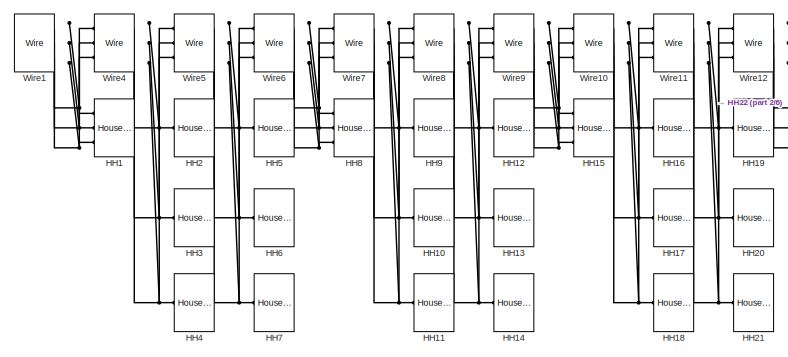
[diagram: root canvas - part 1/6, top left region]
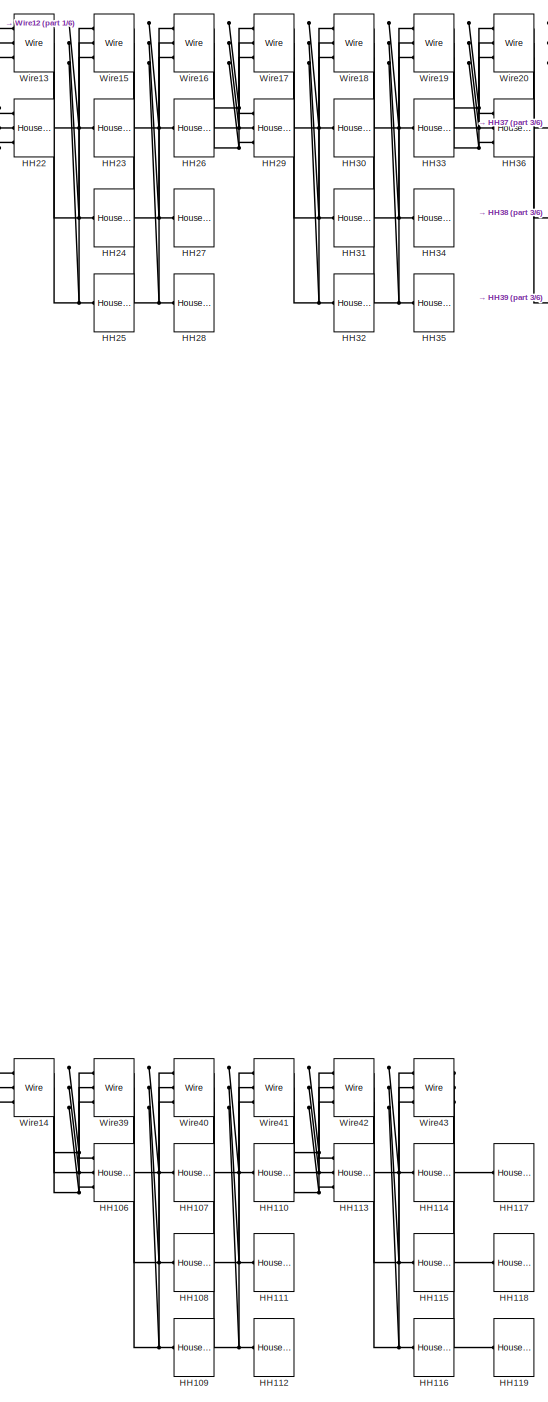
[diagram: root canvas - part 2/6, top center region]
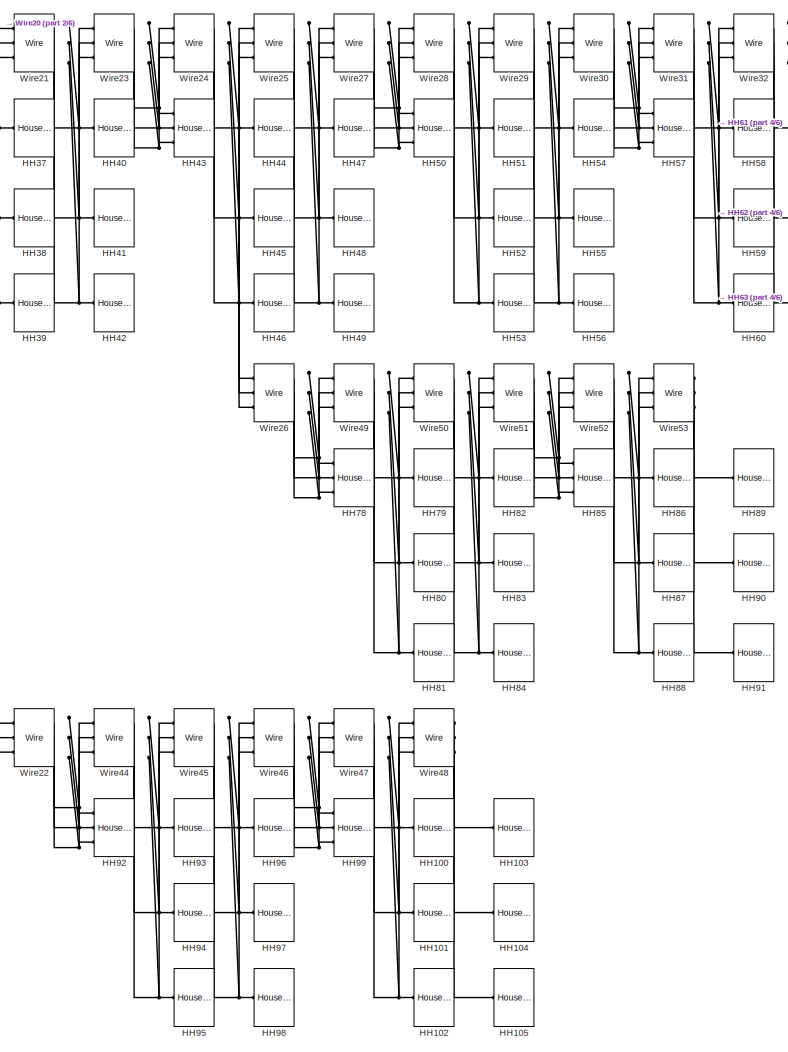
[diagram: root canvas - part 3/6, top center region]
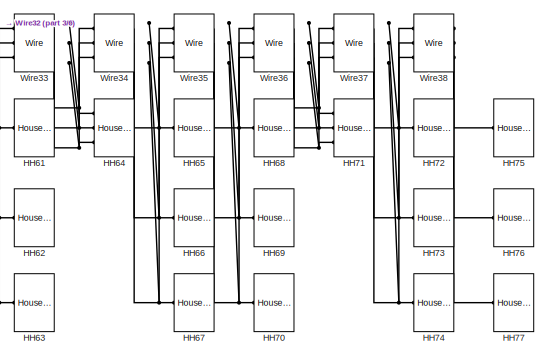
[diagram: root canvas - part 4/6, top right region]
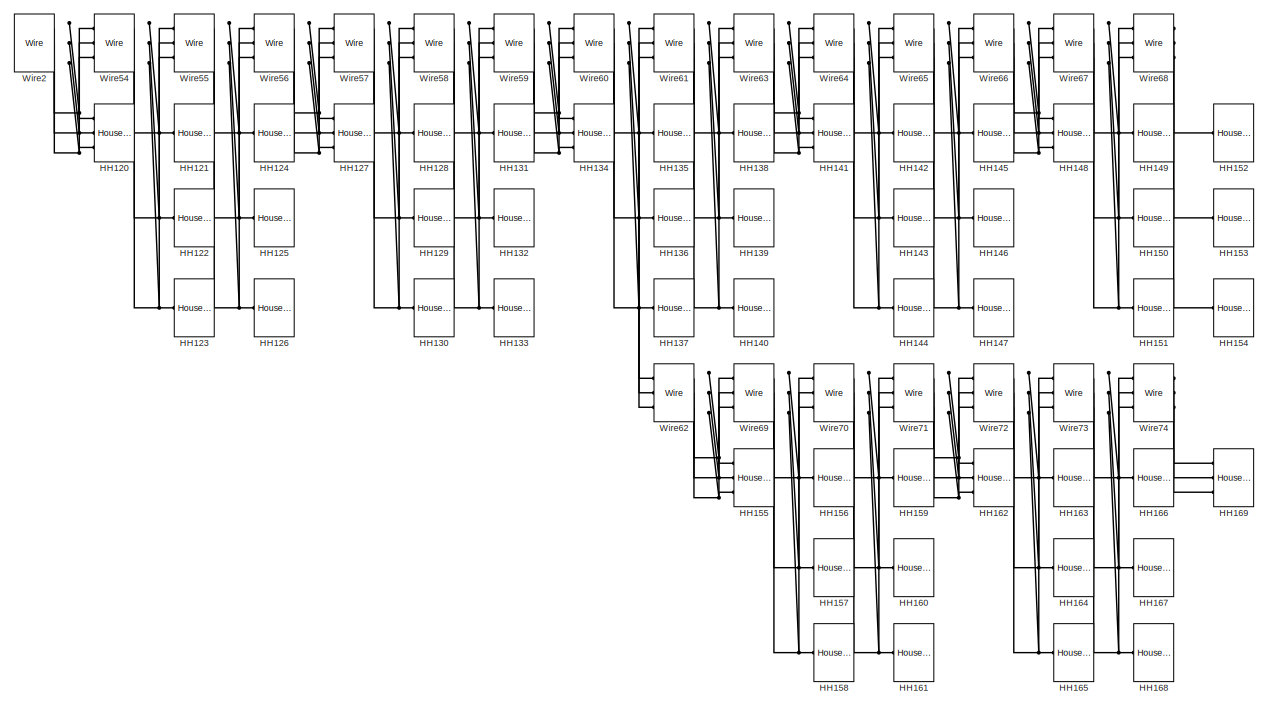
[diagram: root canvas - part 5/6, bottom left region]
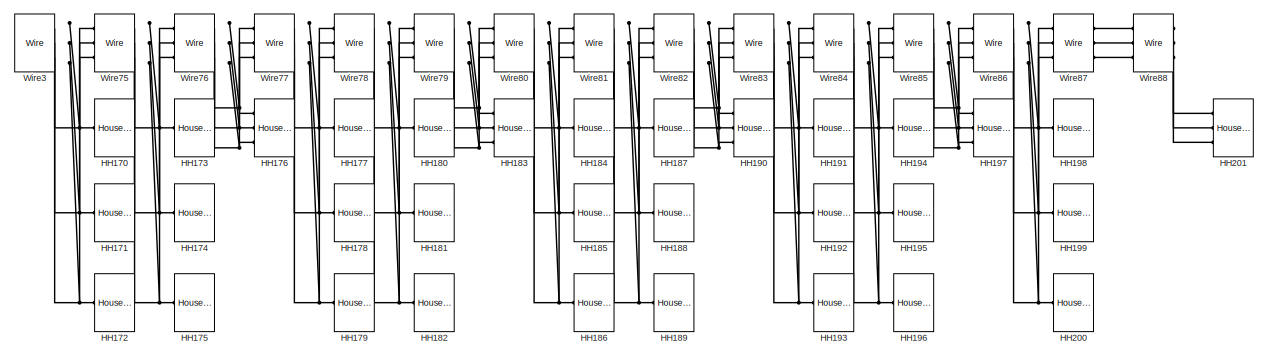
[diagram: root canvas - part 6/6, bottom left region]
MODEL slx_bb78c5064964
KIND model
CONFIG AbsTol = auto
CONFIG EnableMultiTasking = off
CONFIG FixedStep = auto
CONFIG MaxStep = auto
CONFIG MinStep = auto
CONFIG RelTol = 1e-3
CONFIG SampleTimeConstraint = Unconstrained
CONFIG SolverName = VariableStepAuto
CONFIG StartTime = 0.0
CONFIG StopTime = 10.0
BLOCK [Reference] HH1  REF=kif2/Household  (lib defined in slx_8baa95f9d146)
  Ports = [0, 0, 0, 0, 0, 3]
  SourceBlock = kif2/Household
  SourceProductName = KIF2 Library
  SourceType = Household (Three Phase)
BLOCK [Reference] HH10  REF=kif2/Household  (lib defined in slx_8baa95f9d146)
(Single Phase)
  Ports = [0, 0, 0, 0, 0, 1]
  SourceBlock = kif2/Household\n(Single Phase)
  SourceProductName = KIF2 Library
  SourceType = Household (Single Phase)
BLOCK [Reference] HH100  REF=kif2/Household  (lib defined in slx_8baa95f9d146)
(Single Phase)
  Ports = [0, 0, 0, 0, 0, 1]
  SourceBlock = kif2/Household\n(Single Phase)
  SourceProductName = KIF2 Library
  SourceType = Household (Single Phase)
BLOCK [Reference] HH101  REF=kif2/Household  (lib defined in slx_8baa95f9d146)
(Single Phase)
  Ports = [0, 0, 0, 0, 0, 1]
  SourceBlock = kif2/Household\n(Single Phase)
  SourceProductName = KIF2 Library
  SourceType = Household (Single Phase)
BLOCK [Reference] HH102  REF=kif2/Household  (lib defined in slx_8baa95f9d146)
(Single Phase)
  Ports = [0, 0, 0, 0, 0, 1]
  SourceBlock = kif2/Household\n(Single Phase)
  SourceProductName = KIF2 Library
  SourceType = Household (Single Phase)
BLOCK [Reference] HH103  REF=kif2/Household  (lib defined in slx_8baa95f9d146)
(Single Phase)
  Ports = [0, 0, 0, 0, 0, 1]
  SourceBlock = kif2/Household\n(Single Phase)
  SourceProductName = KIF2 Library
  SourceType = Household (Single Phase)
BLOCK [Reference] HH104  REF=kif2/Household  (lib defined in slx_8baa95f9d146)
(Single Phase)
  Ports = [0, 0, 0, 0, 0, 1]
  SourceBlock = kif2/Household\n(Single Phase)
  SourceProductName = KIF2 Library
  SourceType = Household (Single Phase)
BLOCK [Reference] HH105  REF=kif2/Household  (lib defined in slx_8baa95f9d146)
(Single Phase)
  Ports = [0, 0, 0, 0, 0, 1]
  SourceBlock = kif2/Household\n(Single Phase)
  SourceProductName = KIF2 Library
  SourceType = Household (Single Phase)
BLOCK [Reference] HH106  REF=kif2/Household  (lib defined in slx_8baa95f9d146)
  Ports = [0, 0, 0, 0, 0, 3]
  SourceBlock = kif2/Household
  SourceProductName = KIF2 Library
  SourceType = Household (Three Phase)
BLOCK [Reference] HH107  REF=kif2/Household  (lib defined in slx_8baa95f9d146)
(Single Phase)
  Ports = [0, 0, 0, 0, 0, 1]
  SourceBlock = kif2/Household\n(Single Phase)
  SourceProductName = KIF2 Library
  SourceType = Household (Single Phase)
BLOCK [Reference] HH108  REF=kif2/Household  (lib defined in slx_8baa95f9d146)
(Single Phase)
  Ports = [0, 0, 0, 0, 0, 1]
  SourceBlock = kif2/Household\n(Single Phase)
  SourceProductName = KIF2 Library
  SourceType = Household (Single Phase)
BLOCK [Reference] HH109  REF=kif2/Household  (lib defined in slx_8baa95f9d146)
(Single Phase)
  Ports = [0, 0, 0, 0, 0, 1]
  SourceBlock = kif2/Household\n(Single Phase)
  SourceProductName = KIF2 Library
  SourceType = Household (Single Phase)
BLOCK [Reference] HH11  REF=kif2/Household  (lib defined in slx_8baa95f9d146)
(Single Phase)
  Ports = [0, 0, 0, 0, 0, 1]
  SourceBlock = kif2/Household\n(Single Phase)
  SourceProductName = KIF2 Library
  SourceType = Household (Single Phase)
BLOCK [Reference] HH110  REF=kif2/Household  (lib defined in slx_8baa95f9d146)
(Single Phase)
  Ports = [0, 0, 0, 0, 0, 1]
  SourceBlock = kif2/Household\n(Single Phase)
  SourceProductName = KIF2 Library
  SourceType = Household (Single Phase)
BLOCK [Reference] HH111  REF=kif2/Household  (lib defined in slx_8baa95f9d146)
(Single Phase)
  Ports = [0, 0, 0, 0, 0, 1]
  SourceBlock = kif2/Household\n(Single Phase)
  SourceProductName = KIF2 Library
  SourceType = Household (Single Phase)
BLOCK [Reference] HH112  REF=kif2/Household  (lib defined in slx_8baa95f9d146)
(Single Phase)
  Ports = [0, 0, 0, 0, 0, 1]
  SourceBlock = kif2/Household\n(Single Phase)
  SourceProductName = KIF2 Library
  SourceType = Household (Single Phase)
BLOCK [Reference] HH113  REF=kif2/Household  (lib defined in slx_8baa95f9d146)
  Ports = [0, 0, 0, 0, 0, 3]
  SourceBlock = kif2/Household
  SourceProductName = KIF2 Library
  SourceType = Household (Three Phase)
BLOCK [Reference] HH114  REF=kif2/Household  (lib defined in slx_8baa95f9d146)
(Single Phase)
  Ports = [0, 0, 0, 0, 0, 1]
  SourceBlock = kif2/Household\n(Single Phase)
  SourceProductName = KIF2 Library
  SourceType = Household (Single Phase)
BLOCK [Reference] HH115  REF=kif2/Household  (lib defined in slx_8baa95f9d146)
(Single Phase)
  Ports = [0, 0, 0, 0, 0, 1]
  SourceBlock = kif2/Household\n(Single Phase)
  SourceProductName = KIF2 Library
  SourceType = Household (Single Phase)
BLOCK [Reference] HH116  REF=kif2/Household  (lib defined in slx_8baa95f9d146)
(Single Phase)
  Ports = [0, 0, 0, 0, 0, 1]
  SourceBlock = kif2/Household\n(Single Phase)
  SourceProductName = KIF2 Library
  SourceType = Household (Single Phase)
BLOCK [Reference] HH117  REF=kif2/Household  (lib defined in slx_8baa95f9d146)
(Single Phase)
  Ports = [0, 0, 0, 0, 0, 1]
  SourceBlock = kif2/Household\n(Single Phase)
  SourceProductName = KIF2 Library
  SourceType = Household (Single Phase)
BLOCK [Reference] HH118  REF=kif2/Household  (lib defined in slx_8baa95f9d146)
(Single Phase)
  Ports = [0, 0, 0, 0, 0, 1]
  SourceBlock = kif2/Household\n(Single Phase)
  SourceProductName = KIF2 Library
  SourceType = Household (Single Phase)
BLOCK [Reference] HH119  REF=kif2/Household  (lib defined in slx_8baa95f9d146)
(Single Phase)
  Ports = [0, 0, 0, 0, 0, 1]
  SourceBlock = kif2/Household\n(Single Phase)
  SourceProductName = KIF2 Library
  SourceType = Household (Single Phase)
BLOCK [Reference] HH12  REF=kif2/Household  (lib defined in slx_8baa95f9d146)
(Single Phase)
  Ports = [0, 0, 0, 0, 0, 1]
  SourceBlock = kif2/Household\n(Single Phase)
  SourceProductName = KIF2 Library
  SourceType = Household (Single Phase)
BLOCK [Reference] HH120  REF=kif2/Household  (lib defined in slx_8baa95f9d146)
  Ports = [0, 0, 0, 0, 0, 3]
  SourceBlock = kif2/Household
  SourceProductName = KIF2 Library
  SourceType = Household (Three Phase)
BLOCK [Reference] HH121  REF=kif2/Household  (lib defined in slx_8baa95f9d146)
(Single Phase)
  Ports = [0, 0, 0, 0, 0, 1]
  SourceBlock = kif2/Household\n(Single Phase)
  SourceProductName = KIF2 Library
  SourceType = Household (Single Phase)
BLOCK [Reference] HH122  REF=kif2/Household  (lib defined in slx_8baa95f9d146)
(Single Phase)
  Ports = [0, 0, 0, 0, 0, 1]
  SourceBlock = kif2/Household\n(Single Phase)
  SourceProductName = KIF2 Library
  SourceType = Household (Single Phase)
BLOCK [Reference] HH123  REF=kif2/Household  (lib defined in slx_8baa95f9d146)
(Single Phase)
  Ports = [0, 0, 0, 0, 0, 1]
  SourceBlock = kif2/Household\n(Single Phase)
  SourceProductName = KIF2 Library
  SourceType = Household (Single Phase)
BLOCK [Reference] HH124  REF=kif2/Household  (lib defined in slx_8baa95f9d146)
(Single Phase)
  Ports = [0, 0, 0, 0, 0, 1]
  SourceBlock = kif2/Household\n(Single Phase)
  SourceProductName = KIF2 Library
  SourceType = Household (Single Phase)
BLOCK [Reference] HH125  REF=kif2/Household  (lib defined in slx_8baa95f9d146)
(Single Phase)
  Ports = [0, 0, 0, 0, 0, 1]
  SourceBlock = kif2/Household\n(Single Phase)
  SourceProductName = KIF2 Library
  SourceType = Household (Single Phase)
BLOCK [Reference] HH126  REF=kif2/Household  (lib defined in slx_8baa95f9d146)
(Single Phase)
  Ports = [0, 0, 0, 0, 0, 1]
  SourceBlock = kif2/Household\n(Single Phase)
  SourceProductName = KIF2 Library
  SourceType = Household (Single Phase)
BLOCK [Reference] HH127  REF=kif2/Household  (lib defined in slx_8baa95f9d146)
  Ports = [0, 0, 0, 0, 0, 3]
  SourceBlock = kif2/Household
  SourceProductName = KIF2 Library
  SourceType = Household (Three Phase)
BLOCK [Reference] HH128  REF=kif2/Household  (lib defined in slx_8baa95f9d146)
(Single Phase)
  Ports = [0, 0, 0, 0, 0, 1]
  SourceBlock = kif2/Household\n(Single Phase)
  SourceProductName = KIF2 Library
  SourceType = Household (Single Phase)
BLOCK [Reference] HH129  REF=kif2/Household  (lib defined in slx_8baa95f9d146)
(Single Phase)
  Ports = [0, 0, 0, 0, 0, 1]
  SourceBlock = kif2/Household\n(Single Phase)
  SourceProductName = KIF2 Library
  SourceType = Household (Single Phase)
BLOCK [Reference] HH13  REF=kif2/Household  (lib defined in slx_8baa95f9d146)
(Single Phase)
  Ports = [0, 0, 0, 0, 0, 1]
  SourceBlock = kif2/Household\n(Single Phase)
  SourceProductName = KIF2 Library
  SourceType = Household (Single Phase)
BLOCK [Reference] HH130  REF=kif2/Household  (lib defined in slx_8baa95f9d146)
(Single Phase)
  Ports = [0, 0, 0, 0, 0, 1]
  SourceBlock = kif2/Household\n(Single Phase)
  SourceProductName = KIF2 Library
  SourceType = Household (Single Phase)
BLOCK [Reference] HH131  REF=kif2/Household  (lib defined in slx_8baa95f9d146)
(Single Phase)
  Ports = [0, 0, 0, 0, 0, 1]
  SourceBlock = kif2/Household\n(Single Phase)
  SourceProductName = KIF2 Library
  SourceType = Household (Single Phase)
BLOCK [Reference] HH132  REF=kif2/Household  (lib defined in slx_8baa95f9d146)
(Single Phase)
  Ports = [0, 0, 0, 0, 0, 1]
  SourceBlock = kif2/Household\n(Single Phase)
  SourceProductName = KIF2 Library
  SourceType = Household (Single Phase)
BLOCK [Reference] HH133  REF=kif2/Household  (lib defined in slx_8baa95f9d146)
(Single Phase)
  Ports = [0, 0, 0, 0, 0, 1]
  SourceBlock = kif2/Household\n(Single Phase)
  SourceProductName = KIF2 Library
  SourceType = Household (Single Phase)
BLOCK [Reference] HH134  REF=kif2/Household  (lib defined in slx_8baa95f9d146)
  Ports = [0, 0, 0, 0, 0, 3]
  SourceBlock = kif2/Household
  SourceProductName = KIF2 Library
  SourceType = Household (Three Phase)
BLOCK [Reference] HH135  REF=kif2/Household  (lib defined in slx_8baa95f9d146)
(Single Phase)
  Ports = [0, 0, 0, 0, 0, 1]
  SourceBlock = kif2/Household\n(Single Phase)
  SourceProductName = KIF2 Library
  SourceType = Household (Single Phase)
BLOCK [Reference] HH136  REF=kif2/Household  (lib defined in slx_8baa95f9d146)
(Single Phase)
  Ports = [0, 0, 0, 0, 0, 1]
  SourceBlock = kif2/Household\n(Single Phase)
  SourceProductName = KIF2 Library
  SourceType = Household (Single Phase)
BLOCK [Reference] HH137  REF=kif2/Household  (lib defined in slx_8baa95f9d146)
(Single Phase)
  Ports = [0, 0, 0, 0, 0, 1]
  SourceBlock = kif2/Household\n(Single Phase)
  SourceProductName = KIF2 Library
  SourceType = Household (Single Phase)
BLOCK [Reference] HH138  REF=kif2/Household  (lib defined in slx_8baa95f9d146)
(Single Phase)
  Ports = [0, 0, 0, 0, 0, 1]
  SourceBlock = kif2/Household\n(Single Phase)
  SourceProductName = KIF2 Library
  SourceType = Household (Single Phase)
BLOCK [Reference] HH139  REF=kif2/Household  (lib defined in slx_8baa95f9d146)
(Single Phase)
  Ports = [0, 0, 0, 0, 0, 1]
  SourceBlock = kif2/Household\n(Single Phase)
  SourceProductName = KIF2 Library
  SourceType = Household (Single Phase)
BLOCK [Reference] HH14  REF=kif2/Household  (lib defined in slx_8baa95f9d146)
(Single Phase)
  Ports = [0, 0, 0, 0, 0, 1]
  SourceBlock = kif2/Household\n(Single Phase)
  SourceProductName = KIF2 Library
  SourceType = Household (Single Phase)
BLOCK [Reference] HH140  REF=kif2/Household  (lib defined in slx_8baa95f9d146)
(Single Phase)
  Ports = [0, 0, 0, 0, 0, 1]
  SourceBlock = kif2/Household\n(Single Phase)
  SourceProductName = KIF2 Library
  SourceType = Household (Single Phase)
BLOCK [Reference] HH141  REF=kif2/Household  (lib defined in slx_8baa95f9d146)
  Ports = [0, 0, 0, 0, 0, 3]
  SourceBlock = kif2/Household
  SourceProductName = KIF2 Library
  SourceType = Household (Three Phase)
BLOCK [Reference] HH142  REF=kif2/Household  (lib defined in slx_8baa95f9d146)
(Single Phase)
  Ports = [0, 0, 0, 0, 0, 1]
  SourceBlock = kif2/Household\n(Single Phase)
  SourceProductName = KIF2 Library
  SourceType = Household (Single Phase)
BLOCK [Reference] HH143  REF=kif2/Household  (lib defined in slx_8baa95f9d146)
(Single Phase)
  Ports = [0, 0, 0, 0, 0, 1]
  SourceBlock = kif2/Household\n(Single Phase)
  SourceProductName = KIF2 Library
  SourceType = Household (Single Phase)
BLOCK [Reference] HH144  REF=kif2/Household  (lib defined in slx_8baa95f9d146)
(Single Phase)
  Ports = [0, 0, 0, 0, 0, 1]
  SourceBlock = kif2/Household\n(Single Phase)
  SourceProductName = KIF2 Library
  SourceType = Household (Single Phase)
BLOCK [Reference] HH145  REF=kif2/Household  (lib defined in slx_8baa95f9d146)
(Single Phase)
  Ports = [0, 0, 0, 0, 0, 1]
  SourceBlock = kif2/Household\n(Single Phase)
  SourceProductName = KIF2 Library
  SourceType = Household (Single Phase)
BLOCK [Reference] HH146  REF=kif2/Household  (lib defined in slx_8baa95f9d146)
(Single Phase)
  Ports = [0, 0, 0, 0, 0, 1]
  SourceBlock = kif2/Household\n(Single Phase)
  SourceProductName = KIF2 Library
  SourceType = Household (Single Phase)
BLOCK [Reference] HH147  REF=kif2/Household  (lib defined in slx_8baa95f9d146)
(Single Phase)
  Ports = [0, 0, 0, 0, 0, 1]
  SourceBlock = kif2/Household\n(Single Phase)
  SourceProductName = KIF2 Library
  SourceType = Household (Single Phase)
BLOCK [Reference] HH148  REF=kif2/Household  (lib defined in slx_8baa95f9d146)
  Ports = [0, 0, 0, 0, 0, 3]
  SourceBlock = kif2/Household
  SourceProductName = KIF2 Library
  SourceType = Household (Three Phase)
BLOCK [Reference] HH149  REF=kif2/Household  (lib defined in slx_8baa95f9d146)
(Single Phase)
  Ports = [0, 0, 0, 0, 0, 1]
  SourceBlock = kif2/Household\n(Single Phase)
  SourceProductName = KIF2 Library
  SourceType = Household (Single Phase)
BLOCK [Reference] HH15  REF=kif2/Household  (lib defined in slx_8baa95f9d146)
  Ports = [0, 0, 0, 0, 0, 3]
  SourceBlock = kif2/Household
  SourceProductName = KIF2 Library
  SourceType = Household (Three Phase)
BLOCK [Reference] HH150  REF=kif2/Household  (lib defined in slx_8baa95f9d146)
(Single Phase)
  Ports = [0, 0, 0, 0, 0, 1]
  SourceBlock = kif2/Household\n(Single Phase)
  SourceProductName = KIF2 Library
  SourceType = Household (Single Phase)
BLOCK [Reference] HH151  REF=kif2/Household  (lib defined in slx_8baa95f9d146)
(Single Phase)
  Ports = [0, 0, 0, 0, 0, 1]
  SourceBlock = kif2/Household\n(Single Phase)
  SourceProductName = KIF2 Library
  SourceType = Household (Single Phase)
BLOCK [Reference] HH152  REF=kif2/Household  (lib defined in slx_8baa95f9d146)
(Single Phase)
  Ports = [0, 0, 0, 0, 0, 1]
  SourceBlock = kif2/Household\n(Single Phase)
  SourceProductName = KIF2 Library
  SourceType = Household (Single Phase)
BLOCK [Reference] HH153  REF=kif2/Household  (lib defined in slx_8baa95f9d146)
(Single Phase)
  Ports = [0, 0, 0, 0, 0, 1]
  SourceBlock = kif2/Household\n(Single Phase)
  SourceProductName = KIF2 Library
  SourceType = Household (Single Phase)
BLOCK [Reference] HH154  REF=kif2/Household  (lib defined in slx_8baa95f9d146)
(Single Phase)
  Ports = [0, 0, 0, 0, 0, 1]
  SourceBlock = kif2/Household\n(Single Phase)
  SourceProductName = KIF2 Library
  SourceType = Household (Single Phase)
BLOCK [Reference] HH155  REF=kif2/Household  (lib defined in slx_8baa95f9d146)
  Ports = [0, 0, 0, 0, 0, 3]
  SourceBlock = kif2/Household
  SourceProductName = KIF2 Library
  SourceType = Household (Three Phase)
BLOCK [Reference] HH156  REF=kif2/Household  (lib defined in slx_8baa95f9d146)
(Single Phase)
  Ports = [0, 0, 0, 0, 0, 1]
  SourceBlock = kif2/Household\n(Single Phase)
  SourceProductName = KIF2 Library
  SourceType = Household (Single Phase)
BLOCK [Reference] HH157  REF=kif2/Household  (lib defined in slx_8baa95f9d146)
(Single Phase)
  Ports = [0, 0, 0, 0, 0, 1]
  SourceBlock = kif2/Household\n(Single Phase)
  SourceProductName = KIF2 Library
  SourceType = Household (Single Phase)
BLOCK [Reference] HH158  REF=kif2/Household  (lib defined in slx_8baa95f9d146)
(Single Phase)
  Ports = [0, 0, 0, 0, 0, 1]
  SourceBlock = kif2/Household\n(Single Phase)
  SourceProductName = KIF2 Library
  SourceType = Household (Single Phase)
BLOCK [Reference] HH159  REF=kif2/Household  (lib defined in slx_8baa95f9d146)
(Single Phase)
  Ports = [0, 0, 0, 0, 0, 1]
  SourceBlock = kif2/Household\n(Single Phase)
  SourceProductName = KIF2 Library
  SourceType = Household (Single Phase)
BLOCK [Reference] HH16  REF=kif2/Household  (lib defined in slx_8baa95f9d146)
(Single Phase)
  Ports = [0, 0, 0, 0, 0, 1]
  SourceBlock = kif2/Household\n(Single Phase)
  SourceProductName = KIF2 Library
  SourceType = Household (Single Phase)
BLOCK [Reference] HH160  REF=kif2/Household  (lib defined in slx_8baa95f9d146)
(Single Phase)
  Ports = [0, 0, 0, 0, 0, 1]
  SourceBlock = kif2/Household\n(Single Phase)
  SourceProductName = KIF2 Library
  SourceType = Household (Single Phase)
BLOCK [Reference] HH161  REF=kif2/Household  (lib defined in slx_8baa95f9d146)
(Single Phase)
  Ports = [0, 0, 0, 0, 0, 1]
  SourceBlock = kif2/Household\n(Single Phase)
  SourceProductName = KIF2 Library
  SourceType = Household (Single Phase)
BLOCK [Reference] HH162  REF=kif2/Household  (lib defined in slx_8baa95f9d146)
  Ports = [0, 0, 0, 0, 0, 3]
  SourceBlock = kif2/Household
  SourceProductName = KIF2 Library
  SourceType = Household (Three Phase)
BLOCK [Reference] HH163  REF=kif2/Household  (lib defined in slx_8baa95f9d146)
(Single Phase)
  Ports = [0, 0, 0, 0, 0, 1]
  SourceBlock = kif2/Household\n(Single Phase)
  SourceProductName = KIF2 Library
  SourceType = Household (Single Phase)
BLOCK [Reference] HH164  REF=kif2/Household  (lib defined in slx_8baa95f9d146)
(Single Phase)
  Ports = [0, 0, 0, 0, 0, 1]
  SourceBlock = kif2/Household\n(Single Phase)
  SourceProductName = KIF2 Library
  SourceType = Household (Single Phase)
BLOCK [Reference] HH165  REF=kif2/Household  (lib defined in slx_8baa95f9d146)
(Single Phase)
  Ports = [0, 0, 0, 0, 0, 1]
  SourceBlock = kif2/Household\n(Single Phase)
  SourceProductName = KIF2 Library
  SourceType = Household (Single Phase)
BLOCK [Reference] HH166  REF=kif2/Household  (lib defined in slx_8baa95f9d146)
(Single Phase)
  Ports = [0, 0, 0, 0, 0, 1]
  SourceBlock = kif2/Household\n(Single Phase)
  SourceProductName = KIF2 Library
  SourceType = Household (Single Phase)
BLOCK [Reference] HH167  REF=kif2/Household  (lib defined in slx_8baa95f9d146)
(Single Phase)
  Ports = [0, 0, 0, 0, 0, 1]
  SourceBlock = kif2/Household\n(Single Phase)
  SourceProductName = KIF2 Library
  SourceType = Household (Single Phase)
BLOCK [Reference] HH168  REF=kif2/Household  (lib defined in slx_8baa95f9d146)
(Single Phase)
  Ports = [0, 0, 0, 0, 0, 1]
  SourceBlock = kif2/Household\n(Single Phase)
  SourceProductName = KIF2 Library
  SourceType = Household (Single Phase)
BLOCK [Reference] HH169  REF=kif2/Household  (lib defined in slx_8baa95f9d146)
  Ports = [0, 0, 0, 0, 0, 3]
  SourceBlock = kif2/Household
  SourceProductName = KIF2 Library
  SourceType = Household (Three Phase)
BLOCK [Reference] HH17  REF=kif2/Household  (lib defined in slx_8baa95f9d146)
(Single Phase)
  Ports = [0, 0, 0, 0, 0, 1]
  SourceBlock = kif2/Household\n(Single Phase)
  SourceProductName = KIF2 Library
  SourceType = Household (Single Phase)
BLOCK [Reference] HH170  REF=kif2/Household  (lib defined in slx_8baa95f9d146)
(Single Phase)
  Ports = [0, 0, 0, 0, 0, 1]
  SourceBlock = kif2/Household\n(Single Phase)
  SourceProductName = KIF2 Library
  SourceType = Household (Single Phase)
BLOCK [Reference] HH171  REF=kif2/Household  (lib defined in slx_8baa95f9d146)
(Single Phase)
  Ports = [0, 0, 0, 0, 0, 1]
  SourceBlock = kif2/Household\n(Single Phase)
  SourceProductName = KIF2 Library
  SourceType = Household (Single Phase)
BLOCK [Reference] HH172  REF=kif2/Household  (lib defined in slx_8baa95f9d146)
(Single Phase)
  Ports = [0, 0, 0, 0, 0, 1]
  SourceBlock = kif2/Household\n(Single Phase)
  SourceProductName = KIF2 Library
  SourceType = Household (Single Phase)
BLOCK [Reference] HH173  REF=kif2/Household  (lib defined in slx_8baa95f9d146)
(Single Phase)
  Ports = [0, 0, 0, 0, 0, 1]
  SourceBlock = kif2/Household\n(Single Phase)
  SourceProductName = KIF2 Library
  SourceType = Household (Single Phase)
BLOCK [Reference] HH174  REF=kif2/Household  (lib defined in slx_8baa95f9d146)
(Single Phase)
  Ports = [0, 0, 0, 0, 0, 1]
  SourceBlock = kif2/Household\n(Single Phase)
  SourceProductName = KIF2 Library
  SourceType = Household (Single Phase)
BLOCK [Reference] HH175  REF=kif2/Household  (lib defined in slx_8baa95f9d146)
(Single Phase)
  Ports = [0, 0, 0, 0, 0, 1]
  SourceBlock = kif2/Household\n(Single Phase)
  SourceProductName = KIF2 Library
  SourceType = Household (Single Phase)
BLOCK [Reference] HH176  REF=kif2/Household  (lib defined in slx_8baa95f9d146)
  Ports = [0, 0, 0, 0, 0, 3]
  SourceBlock = kif2/Household
  SourceProductName = KIF2 Library
  SourceType = Household (Three Phase)
BLOCK [Reference] HH177  REF=kif2/Household  (lib defined in slx_8baa95f9d146)
(Single Phase)
  Ports = [0, 0, 0, 0, 0, 1]
  SourceBlock = kif2/Household\n(Single Phase)
  SourceProductName = KIF2 Library
  SourceType = Household (Single Phase)
BLOCK [Reference] HH178  REF=kif2/Household  (lib defined in slx_8baa95f9d146)
(Single Phase)
  Ports = [0, 0, 0, 0, 0, 1]
  SourceBlock = kif2/Household\n(Single Phase)
  SourceProductName = KIF2 Library
  SourceType = Household (Single Phase)
BLOCK [Reference] HH179  REF=kif2/Household  (lib defined in slx_8baa95f9d146)
(Single Phase)
  Ports = [0, 0, 0, 0, 0, 1]
  SourceBlock = kif2/Household\n(Single Phase)
  SourceProductName = KIF2 Library
  SourceType = Household (Single Phase)
BLOCK [Reference] HH18  REF=kif2/Household  (lib defined in slx_8baa95f9d146)
(Single Phase)
  Ports = [0, 0, 0, 0, 0, 1]
  SourceBlock = kif2/Household\n(Single Phase)
  SourceProductName = KIF2 Library
  SourceType = Household (Single Phase)
BLOCK [Reference] HH180  REF=kif2/Household  (lib defined in slx_8baa95f9d146)
(Single Phase)
  Ports = [0, 0, 0, 0, 0, 1]
  SourceBlock = kif2/Household\n(Single Phase)
  SourceProductName = KIF2 Library
  SourceType = Household (Single Phase)
BLOCK [Reference] HH181  REF=kif2/Household  (lib defined in slx_8baa95f9d146)
(Single Phase)
  Ports = [0, 0, 0, 0, 0, 1]
  SourceBlock = kif2/Household\n(Single Phase)
  SourceProductName = KIF2 Library
  SourceType = Household (Single Phase)
BLOCK [Reference] HH182  REF=kif2/Household  (lib defined in slx_8baa95f9d146)
(Single Phase)
  Ports = [0, 0, 0, 0, 0, 1]
  SourceBlock = kif2/Household\n(Single Phase)
  SourceProductName = KIF2 Library
  SourceType = Household (Single Phase)
BLOCK [Reference] HH183  REF=kif2/Household  (lib defined in slx_8baa95f9d146)
  Ports = [0, 0, 0, 0, 0, 3]
  SourceBlock = kif2/Household
  SourceProductName = KIF2 Library
  SourceType = Household (Three Phase)
BLOCK [Reference] HH184  REF=kif2/Household  (lib defined in slx_8baa95f9d146)
(Single Phase)
  Ports = [0, 0, 0, 0, 0, 1]
  SourceBlock = kif2/Household\n(Single Phase)
  SourceProductName = KIF2 Library
  SourceType = Household (Single Phase)
BLOCK [Reference] HH185  REF=kif2/Household  (lib defined in slx_8baa95f9d146)
(Single Phase)
  Ports = [0, 0, 0, 0, 0, 1]
  SourceBlock = kif2/Household\n(Single Phase)
  SourceProductName = KIF2 Library
  SourceType = Household (Single Phase)
BLOCK [Reference] HH186  REF=kif2/Household  (lib defined in slx_8baa95f9d146)
(Single Phase)
  Ports = [0, 0, 0, 0, 0, 1]
  SourceBlock = kif2/Household\n(Single Phase)
  SourceProductName = KIF2 Library
  SourceType = Household (Single Phase)
BLOCK [Reference] HH187  REF=kif2/Household  (lib defined in slx_8baa95f9d146)
(Single Phase)
  Ports = [0, 0, 0, 0, 0, 1]
  SourceBlock = kif2/Household\n(Single Phase)
  SourceProductName = KIF2 Library
  SourceType = Household (Single Phase)
BLOCK [Reference] HH188  REF=kif2/Household  (lib defined in slx_8baa95f9d146)
(Single Phase)
  Ports = [0, 0, 0, 0, 0, 1]
  SourceBlock = kif2/Household\n(Single Phase)
  SourceProductName = KIF2 Library
  SourceType = Household (Single Phase)
BLOCK [Reference] HH189  REF=kif2/Household  (lib defined in slx_8baa95f9d146)
(Single Phase)
  Ports = [0, 0, 0, 0, 0, 1]
  SourceBlock = kif2/Household\n(Single Phase)
  SourceProductName = KIF2 Library
  SourceType = Household (Single Phase)
BLOCK [Reference] HH19  REF=kif2/Household  (lib defined in slx_8baa95f9d146)
(Single Phase)
  Ports = [0, 0, 0, 0, 0, 1]
  SourceBlock = kif2/Household\n(Single Phase)
  SourceProductName = KIF2 Library
  SourceType = Household (Single Phase)
BLOCK [Reference] HH190  REF=kif2/Household  (lib defined in slx_8baa95f9d146)
  Ports = [0, 0, 0, 0, 0, 3]
  SourceBlock = kif2/Household
  SourceProductName = KIF2 Library
  SourceType = Household (Three Phase)
BLOCK [Reference] HH191  REF=kif2/Household  (lib defined in slx_8baa95f9d146)
(Single Phase)
  Ports = [0, 0, 0, 0, 0, 1]
  SourceBlock = kif2/Household\n(Single Phase)
  SourceProductName = KIF2 Library
  SourceType = Household (Single Phase)
BLOCK [Reference] HH192  REF=kif2/Household  (lib defined in slx_8baa95f9d146)
(Single Phase)
  Ports = [0, 0, 0, 0, 0, 1]
  SourceBlock = kif2/Household\n(Single Phase)
  SourceProductName = KIF2 Library
  SourceType = Household (Single Phase)
BLOCK [Reference] HH193  REF=kif2/Household  (lib defined in slx_8baa95f9d146)
(Single Phase)
  Ports = [0, 0, 0, 0, 0, 1]
  SourceBlock = kif2/Household\n(Single Phase)
  SourceProductName = KIF2 Library
  SourceType = Household (Single Phase)
BLOCK [Reference] HH194  REF=kif2/Household  (lib defined in slx_8baa95f9d146)
(Single Phase)
  Ports = [0, 0, 0, 0, 0, 1]
  SourceBlock = kif2/Household\n(Single Phase)
  SourceProductName = KIF2 Library
  SourceType = Household (Single Phase)
BLOCK [Reference] HH195  REF=kif2/Household  (lib defined in slx_8baa95f9d146)
(Single Phase)
  Ports = [0, 0, 0, 0, 0, 1]
  SourceBlock = kif2/Household\n(Single Phase)
  SourceProductName = KIF2 Library
  SourceType = Household (Single Phase)
BLOCK [Reference] HH196  REF=kif2/Household  (lib defined in slx_8baa95f9d146)
(Single Phase)
  Ports = [0, 0, 0, 0, 0, 1]
  SourceBlock = kif2/Household\n(Single Phase)
  SourceProductName = KIF2 Library
  SourceType = Household (Single Phase)
BLOCK [Reference] HH197  REF=kif2/Household  (lib defined in slx_8baa95f9d146)
  Ports = [0, 0, 0, 0, 0, 3]
  SourceBlock = kif2/Household
  SourceProductName = KIF2 Library
  SourceType = Household (Three Phase)
BLOCK [Reference] HH198  REF=kif2/Household  (lib defined in slx_8baa95f9d146)
(Single Phase)
  Ports = [0, 0, 0, 0, 0, 1]
  SourceBlock = kif2/Household\n(Single Phase)
  SourceProductName = KIF2 Library
  SourceType = Household (Single Phase)
BLOCK [Reference] HH199  REF=kif2/Household  (lib defined in slx_8baa95f9d146)
(Single Phase)
  Ports = [0, 0, 0, 0, 0, 1]
  SourceBlock = kif2/Household\n(Single Phase)
  SourceProductName = KIF2 Library
  SourceType = Household (Single Phase)
BLOCK [Reference] HH2  REF=kif2/Household  (lib defined in slx_8baa95f9d146)
(Single Phase)
  Ports = [0, 0, 0, 0, 0, 1]
  SourceBlock = kif2/Household\n(Single Phase)
  SourceProductName = KIF2 Library
  SourceType = Household (Single Phase)
BLOCK [Reference] HH20  REF=kif2/Household  (lib defined in slx_8baa95f9d146)
(Single Phase)
  Ports = [0, 0, 0, 0, 0, 1]
  SourceBlock = kif2/Household\n(Single Phase)
  SourceProductName = KIF2 Library
  SourceType = Household (Single Phase)
BLOCK [Reference] HH200  REF=kif2/Household  (lib defined in slx_8baa95f9d146)
(Single Phase)
  Ports = [0, 0, 0, 0, 0, 1]
  SourceBlock = kif2/Household\n(Single Phase)
  SourceProductName = KIF2 Library
  SourceType = Household (Single Phase)
BLOCK [Reference] HH201  REF=kif2/Household  (lib defined in slx_8baa95f9d146)
  Ports = [0, 0, 0, 0, 0, 3]
  SourceBlock = kif2/Household
  SourceProductName = KIF2 Library
  SourceType = Household (Three Phase)
BLOCK [Reference] HH21  REF=kif2/Household  (lib defined in slx_8baa95f9d146)
(Single Phase)
  Ports = [0, 0, 0, 0, 0, 1]
  SourceBlock = kif2/Household\n(Single Phase)
  SourceProductName = KIF2 Library
  SourceType = Household (Single Phase)
BLOCK [Reference] HH22  REF=kif2/Household  (lib defined in slx_8baa95f9d146)
  Ports = [0, 0, 0, 0, 0, 3]
  SourceBlock = kif2/Household
  SourceProductName = KIF2 Library
  SourceType = Household (Three Phase)
BLOCK [Reference] HH23  REF=kif2/Household  (lib defined in slx_8baa95f9d146)
(Single Phase)
  Ports = [0, 0, 0, 0, 0, 1]
  SourceBlock = kif2/Household\n(Single Phase)
  SourceProductName = KIF2 Library
  SourceType = Household (Single Phase)
BLOCK [Reference] HH24  REF=kif2/Household  (lib defined in slx_8baa95f9d146)
(Single Phase)
  Ports = [0, 0, 0, 0, 0, 1]
  SourceBlock = kif2/Household\n(Single Phase)
  SourceProductName = KIF2 Library
  SourceType = Household (Single Phase)
BLOCK [Reference] HH25  REF=kif2/Household  (lib defined in slx_8baa95f9d146)
(Single Phase)
  Ports = [0, 0, 0, 0, 0, 1]
  SourceBlock = kif2/Household\n(Single Phase)
  SourceProductName = KIF2 Library
  SourceType = Household (Single Phase)
BLOCK [Reference] HH26  REF=kif2/Household  (lib defined in slx_8baa95f9d146)
(Single Phase)
  Ports = [0, 0, 0, 0, 0, 1]
  SourceBlock = kif2/Household\n(Single Phase)
  SourceProductName = KIF2 Library
  SourceType = Household (Single Phase)
BLOCK [Reference] HH27  REF=kif2/Household  (lib defined in slx_8baa95f9d146)
(Single Phase)
  Ports = [0, 0, 0, 0, 0, 1]
  SourceBlock = kif2/Household\n(Single Phase)
  SourceProductName = KIF2 Library
  SourceType = Household (Single Phase)
BLOCK [Reference] HH28  REF=kif2/Household  (lib defined in slx_8baa95f9d146)
(Single Phase)
  Ports = [0, 0, 0, 0, 0, 1]
  SourceBlock = kif2/Household\n(Single Phase)
  SourceProductName = KIF2 Library
  SourceType = Household (Single Phase)
BLOCK [Reference] HH29  REF=kif2/Household  (lib defined in slx_8baa95f9d146)
  Ports = [0, 0, 0, 0, 0, 3]
  SourceBlock = kif2/Household
  SourceProductName = KIF2 Library
  SourceType = Household (Three Phase)
BLOCK [Reference] HH3  REF=kif2/Household  (lib defined in slx_8baa95f9d146)
(Single Phase)
  Ports = [0, 0, 0, 0, 0, 1]
  SourceBlock = kif2/Household\n(Single Phase)
  SourceProductName = KIF2 Library
  SourceType = Household (Single Phase)
BLOCK [Reference] HH30  REF=kif2/Household  (lib defined in slx_8baa95f9d146)
(Single Phase)
  Ports = [0, 0, 0, 0, 0, 1]
  SourceBlock = kif2/Household\n(Single Phase)
  SourceProductName = KIF2 Library
  SourceType = Household (Single Phase)
BLOCK [Reference] HH31  REF=kif2/Household  (lib defined in slx_8baa95f9d146)
(Single Phase)
  Ports = [0, 0, 0, 0, 0, 1]
  SourceBlock = kif2/Household\n(Single Phase)
  SourceProductName = KIF2 Library
  SourceType = Household (Single Phase)
BLOCK [Reference] HH32  REF=kif2/Household  (lib defined in slx_8baa95f9d146)
(Single Phase)
  Ports = [0, 0, 0, 0, 0, 1]
  SourceBlock = kif2/Household\n(Single Phase)
  SourceProductName = KIF2 Library
  SourceType = Household (Single Phase)
BLOCK [Reference] HH33  REF=kif2/Household  (lib defined in slx_8baa95f9d146)
(Single Phase)
  Ports = [0, 0, 0, 0, 0, 1]
  SourceBlock = kif2/Household\n(Single Phase)
  SourceProductName = KIF2 Library
  SourceType = Household (Single Phase)
BLOCK [Reference] HH34  REF=kif2/Household  (lib defined in slx_8baa95f9d146)
(Single Phase)
  Ports = [0, 0, 0, 0, 0, 1]
  SourceBlock = kif2/Household\n(Single Phase)
  SourceProductName = KIF2 Library
  SourceType = Household (Single Phase)
BLOCK [Reference] HH35  REF=kif2/Household  (lib defined in slx_8baa95f9d146)
(Single Phase)
  Ports = [0, 0, 0, 0, 0, 1]
  SourceBlock = kif2/Household\n(Single Phase)
  SourceProductName = KIF2 Library
  SourceType = Household (Single Phase)
BLOCK [Reference] HH36  REF=kif2/Household  (lib defined in slx_8baa95f9d146)
  Ports = [0, 0, 0, 0, 0, 3]
  SourceBlock = kif2/Household
  SourceProductName = KIF2 Library
  SourceType = Household (Three Phase)
BLOCK [Reference] HH37  REF=kif2/Household  (lib defined in slx_8baa95f9d146)
(Single Phase)
  Ports = [0, 0, 0, 0, 0, 1]
  SourceBlock = kif2/Household\n(Single Phase)
  SourceProductName = KIF2 Library
  SourceType = Household (Single Phase)
BLOCK [Reference] HH38  REF=kif2/Household  (lib defined in slx_8baa95f9d146)
(Single Phase)
  Ports = [0, 0, 0, 0, 0, 1]
  SourceBlock = kif2/Household\n(Single Phase)
  SourceProductName = KIF2 Library
  SourceType = Household (Single Phase)
BLOCK [Reference] HH39  REF=kif2/Household  (lib defined in slx_8baa95f9d146)
(Single Phase)
  Ports = [0, 0, 0, 0, 0, 1]
  SourceBlock = kif2/Household\n(Single Phase)
  SourceProductName = KIF2 Library
  SourceType = Household (Single Phase)
BLOCK [Reference] HH4  REF=kif2/Household  (lib defined in slx_8baa95f9d146)
(Single Phase)
  Ports = [0, 0, 0, 0, 0, 1]
  SourceBlock = kif2/Household\n(Single Phase)
  SourceProductName = KIF2 Library
  SourceType = Household (Single Phase)
BLOCK [Reference] HH40  REF=kif2/Household  (lib defined in slx_8baa95f9d146)
(Single Phase)
  Ports = [0, 0, 0, 0, 0, 1]
  SourceBlock = kif2/Household\n(Single Phase)
  SourceProductName = KIF2 Library
  SourceType = Household (Single Phase)
BLOCK [Reference] HH41  REF=kif2/Household  (lib defined in slx_8baa95f9d146)
(Single Phase)
  Ports = [0, 0, 0, 0, 0, 1]
  SourceBlock = kif2/Household\n(Single Phase)
  SourceProductName = KIF2 Library
  SourceType = Household (Single Phase)
BLOCK [Reference] HH42  REF=kif2/Household  (lib defined in slx_8baa95f9d146)
(Single Phase)
  Ports = [0, 0, 0, 0, 0, 1]
  SourceBlock = kif2/Household\n(Single Phase)
  SourceProductName = KIF2 Library
  SourceType = Household (Single Phase)
BLOCK [Reference] HH43  REF=kif2/Household  (lib defined in slx_8baa95f9d146)
  Ports = [0, 0, 0, 0, 0, 3]
  SourceBlock = kif2/Household
  SourceProductName = KIF2 Library
  SourceType = Household (Three Phase)
BLOCK [Reference] HH44  REF=kif2/Household  (lib defined in slx_8baa95f9d146)
(Single Phase)
  Ports = [0, 0, 0, 0, 0, 1]
  SourceBlock = kif2/Household\n(Single Phase)
  SourceProductName = KIF2 Library
  SourceType = Household (Single Phase)
BLOCK [Reference] HH45  REF=kif2/Household  (lib defined in slx_8baa95f9d146)
(Single Phase)
  Ports = [0, 0, 0, 0, 0, 1]
  SourceBlock = kif2/Household\n(Single Phase)
  SourceProductName = KIF2 Library
  SourceType = Household (Single Phase)
BLOCK [Reference] HH46  REF=kif2/Household  (lib defined in slx_8baa95f9d146)
(Single Phase)
  Ports = [0, 0, 0, 0, 0, 1]
  SourceBlock = kif2/Household\n(Single Phase)
  SourceProductName = KIF2 Library
  SourceType = Household (Single Phase)
BLOCK [Reference] HH47  REF=kif2/Household  (lib defined in slx_8baa95f9d146)
(Single Phase)
  Ports = [0, 0, 0, 0, 0, 1]
  SourceBlock = kif2/Household\n(Single Phase)
  SourceProductName = KIF2 Library
  SourceType = Household (Single Phase)
BLOCK [Reference] HH48  REF=kif2/Household  (lib defined in slx_8baa95f9d146)
(Single Phase)
  Ports = [0, 0, 0, 0, 0, 1]
  SourceBlock = kif2/Household\n(Single Phase)
  SourceProductName = KIF2 Library
  SourceType = Household (Single Phase)
BLOCK [Reference] HH49  REF=kif2/Household  (lib defined in slx_8baa95f9d146)
(Single Phase)
  Ports = [0, 0, 0, 0, 0, 1]
  SourceBlock = kif2/Household\n(Single Phase)
  SourceProductName = KIF2 Library
  SourceType = Household (Single Phase)
BLOCK [Reference] HH5  REF=kif2/Household  (lib defined in slx_8baa95f9d146)
(Single Phase)
  Ports = [0, 0, 0, 0, 0, 1]
  SourceBlock = kif2/Household\n(Single Phase)
  SourceProductName = KIF2 Library
  SourceType = Household (Single Phase)
BLOCK [Reference] HH50  REF=kif2/Household  (lib defined in slx_8baa95f9d146)
  Ports = [0, 0, 0, 0, 0, 3]
  SourceBlock = kif2/Household
  SourceProductName = KIF2 Library
  SourceType = Household (Three Phase)
BLOCK [Reference] HH51  REF=kif2/Household  (lib defined in slx_8baa95f9d146)
(Single Phase)
  Ports = [0, 0, 0, 0, 0, 1]
  SourceBlock = kif2/Household\n(Single Phase)
  SourceProductName = KIF2 Library
  SourceType = Household (Single Phase)
BLOCK [Reference] HH52  REF=kif2/Household  (lib defined in slx_8baa95f9d146)
(Single Phase)
  Ports = [0, 0, 0, 0, 0, 1]
  SourceBlock = kif2/Household\n(Single Phase)
  SourceProductName = KIF2 Library
  SourceType = Household (Single Phase)
BLOCK [Reference] HH53  REF=kif2/Household  (lib defined in slx_8baa95f9d146)
(Single Phase)
  Ports = [0, 0, 0, 0, 0, 1]
  SourceBlock = kif2/Household\n(Single Phase)
  SourceProductName = KIF2 Library
  SourceType = Household (Single Phase)
BLOCK [Reference] HH54  REF=kif2/Household  (lib defined in slx_8baa95f9d146)
(Single Phase)
  Ports = [0, 0, 0, 0, 0, 1]
  SourceBlock = kif2/Household\n(Single Phase)
  SourceProductName = KIF2 Library
  SourceType = Household (Single Phase)
BLOCK [Reference] HH55  REF=kif2/Household  (lib defined in slx_8baa95f9d146)
(Single Phase)
  Ports = [0, 0, 0, 0, 0, 1]
  SourceBlock = kif2/Household\n(Single Phase)
  SourceProductName = KIF2 Library
  SourceType = Household (Single Phase)
BLOCK [Reference] HH56  REF=kif2/Household  (lib defined in slx_8baa95f9d146)
(Single Phase)
  Ports = [0, 0, 0, 0, 0, 1]
  SourceBlock = kif2/Household\n(Single Phase)
  SourceProductName = KIF2 Library
  SourceType = Household (Single Phase)
BLOCK [Reference] HH57  REF=kif2/Household  (lib defined in slx_8baa95f9d146)
  Ports = [0, 0, 0, 0, 0, 3]
  SourceBlock = kif2/Household
  SourceProductName = KIF2 Library
  SourceType = Household (Three Phase)
BLOCK [Reference] HH58  REF=kif2/Household  (lib defined in slx_8baa95f9d146)
(Single Phase)
  Ports = [0, 0, 0, 0, 0, 1]
  SourceBlock = kif2/Household\n(Single Phase)
  SourceProductName = KIF2 Library
  SourceType = Household (Single Phase)
BLOCK [Reference] HH59  REF=kif2/Household  (lib defined in slx_8baa95f9d146)
(Single Phase)
  Ports = [0, 0, 0, 0, 0, 1]
  SourceBlock = kif2/Household\n(Single Phase)
  SourceProductName = KIF2 Library
  SourceType = Household (Single Phase)
BLOCK [Reference] HH6  REF=kif2/Household  (lib defined in slx_8baa95f9d146)
(Single Phase)
  Ports = [0, 0, 0, 0, 0, 1]
  SourceBlock = kif2/Household\n(Single Phase)
  SourceProductName = KIF2 Library
  SourceType = Household (Single Phase)
BLOCK [Reference] HH60  REF=kif2/Household  (lib defined in slx_8baa95f9d146)
(Single Phase)
  Ports = [0, 0, 0, 0, 0, 1]
  SourceBlock = kif2/Household\n(Single Phase)
  SourceProductName = KIF2 Library
  SourceType = Household (Single Phase)
BLOCK [Reference] HH61  REF=kif2/Household  (lib defined in slx_8baa95f9d146)
(Single Phase)
  Ports = [0, 0, 0, 0, 0, 1]
  SourceBlock = kif2/Household\n(Single Phase)
  SourceProductName = KIF2 Library
  SourceType = Household (Single Phase)
BLOCK [Reference] HH62  REF=kif2/Household  (lib defined in slx_8baa95f9d146)
(Single Phase)
  Ports = [0, 0, 0, 0, 0, 1]
  SourceBlock = kif2/Household\n(Single Phase)
  SourceProductName = KIF2 Library
  SourceType = Household (Single Phase)
BLOCK [Reference] HH63  REF=kif2/Household  (lib defined in slx_8baa95f9d146)
(Single Phase)
  Ports = [0, 0, 0, 0, 0, 1]
  SourceBlock = kif2/Household\n(Single Phase)
  SourceProductName = KIF2 Library
  SourceType = Household (Single Phase)
BLOCK [Reference] HH64  REF=kif2/Household  (lib defined in slx_8baa95f9d146)
  Ports = [0, 0, 0, 0, 0, 3]
  SourceBlock = kif2/Household
  SourceProductName = KIF2 Library
  SourceType = Household (Three Phase)
BLOCK [Reference] HH65  REF=kif2/Household  (lib defined in slx_8baa95f9d146)
(Single Phase)
  Ports = [0, 0, 0, 0, 0, 1]
  SourceBlock = kif2/Household\n(Single Phase)
  SourceProductName = KIF2 Library
  SourceType = Household (Single Phase)
BLOCK [Reference] HH66  REF=kif2/Household  (lib defined in slx_8baa95f9d146)
(Single Phase)
  Ports = [0, 0, 0, 0, 0, 1]
  SourceBlock = kif2/Household\n(Single Phase)
  SourceProductName = KIF2 Library
  SourceType = Household (Single Phase)
BLOCK [Reference] HH67  REF=kif2/Household  (lib defined in slx_8baa95f9d146)
(Single Phase)
  Ports = [0, 0, 0, 0, 0, 1]
  SourceBlock = kif2/Household\n(Single Phase)
  SourceProductName = KIF2 Library
  SourceType = Household (Single Phase)
BLOCK [Reference] HH68  REF=kif2/Household  (lib defined in slx_8baa95f9d146)
(Single Phase)
  Ports = [0, 0, 0, 0, 0, 1]
  SourceBlock = kif2/Household\n(Single Phase)
  SourceProductName = KIF2 Library
  SourceType = Household (Single Phase)
BLOCK [Reference] HH69  REF=kif2/Household  (lib defined in slx_8baa95f9d146)
(Single Phase)
  Ports = [0, 0, 0, 0, 0, 1]
  SourceBlock = kif2/Household\n(Single Phase)
  SourceProductName = KIF2 Library
  SourceType = Household (Single Phase)
BLOCK [Reference] HH7  REF=kif2/Household  (lib defined in slx_8baa95f9d146)
(Single Phase)
  Ports = [0, 0, 0, 0, 0, 1]
  SourceBlock = kif2/Household\n(Single Phase)
  SourceProductName = KIF2 Library
  SourceType = Household (Single Phase)
BLOCK [Reference] HH70  REF=kif2/Household  (lib defined in slx_8baa95f9d146)
(Single Phase)
  Ports = [0, 0, 0, 0, 0, 1]
  SourceBlock = kif2/Household\n(Single Phase)
  SourceProductName = KIF2 Library
  SourceType = Household (Single Phase)
BLOCK [Reference] HH71  REF=kif2/Household  (lib defined in slx_8baa95f9d146)
  Ports = [0, 0, 0, 0, 0, 3]
  SourceBlock = kif2/Household
  SourceProductName = KIF2 Library
  SourceType = Household (Three Phase)
BLOCK [Reference] HH72  REF=kif2/Household  (lib defined in slx_8baa95f9d146)
(Single Phase)
  Ports = [0, 0, 0, 0, 0, 1]
  SourceBlock = kif2/Household\n(Single Phase)
  SourceProductName = KIF2 Library
  SourceType = Household (Single Phase)
BLOCK [Reference] HH73  REF=kif2/Household  (lib defined in slx_8baa95f9d146)
(Single Phase)
  Ports = [0, 0, 0, 0, 0, 1]
  SourceBlock = kif2/Household\n(Single Phase)
  SourceProductName = KIF2 Library
  SourceType = Household (Single Phase)
BLOCK [Reference] HH74  REF=kif2/Household  (lib defined in slx_8baa95f9d146)
(Single Phase)
  Ports = [0, 0, 0, 0, 0, 1]
  SourceBlock = kif2/Household\n(Single Phase)
  SourceProductName = KIF2 Library
  SourceType = Household (Single Phase)
BLOCK [Reference] HH75  REF=kif2/Household  (lib defined in slx_8baa95f9d146)
(Single Phase)
  Ports = [0, 0, 0, 0, 0, 1]
  SourceBlock = kif2/Household\n(Single Phase)
  SourceProductName = KIF2 Library
  SourceType = Household (Single Phase)
BLOCK [Reference] HH76  REF=kif2/Household  (lib defined in slx_8baa95f9d146)
(Single Phase)
  Ports = [0, 0, 0, 0, 0, 1]
  SourceBlock = kif2/Household\n(Single Phase)
  SourceProductName = KIF2 Library
  SourceType = Household (Single Phase)
BLOCK [Reference] HH77  REF=kif2/Household  (lib defined in slx_8baa95f9d146)
(Single Phase)
  Ports = [0, 0, 0, 0, 0, 1]
  SourceBlock = kif2/Household\n(Single Phase)
  SourceProductName = KIF2 Library
  SourceType = Household (Single Phase)
BLOCK [Reference] HH78  REF=kif2/Household  (lib defined in slx_8baa95f9d146)
  Ports = [0, 0, 0, 0, 0, 3]
  SourceBlock = kif2/Household
  SourceProductName = KIF2 Library
  SourceType = Household (Three Phase)
BLOCK [Reference] HH79  REF=kif2/Household  (lib defined in slx_8baa95f9d146)
(Single Phase)
  Ports = [0, 0, 0, 0, 0, 1]
  SourceBlock = kif2/Household\n(Single Phase)
  SourceProductName = KIF2 Library
  SourceType = Household (Single Phase)
BLOCK [Reference] HH8  REF=kif2/Household  (lib defined in slx_8baa95f9d146)
  Ports = [0, 0, 0, 0, 0, 3]
  SourceBlock = kif2/Household
  SourceProductName = KIF2 Library
  SourceType = Household (Three Phase)
BLOCK [Reference] HH80  REF=kif2/Household  (lib defined in slx_8baa95f9d146)
(Single Phase)
  Ports = [0, 0, 0, 0, 0, 1]
  SourceBlock = kif2/Household\n(Single Phase)
  SourceProductName = KIF2 Library
  SourceType = Household (Single Phase)
BLOCK [Reference] HH81  REF=kif2/Household  (lib defined in slx_8baa95f9d146)
(Single Phase)
  Ports = [0, 0, 0, 0, 0, 1]
  SourceBlock = kif2/Household\n(Single Phase)
  SourceProductName = KIF2 Library
  SourceType = Household (Single Phase)
BLOCK [Reference] HH82  REF=kif2/Household  (lib defined in slx_8baa95f9d146)
(Single Phase)
  Ports = [0, 0, 0, 0, 0, 1]
  SourceBlock = kif2/Household\n(Single Phase)
  SourceProductName = KIF2 Library
  SourceType = Household (Single Phase)
BLOCK [Reference] HH83  REF=kif2/Household  (lib defined in slx_8baa95f9d146)
(Single Phase)
  Ports = [0, 0, 0, 0, 0, 1]
  SourceBlock = kif2/Household\n(Single Phase)
  SourceProductName = KIF2 Library
  SourceType = Household (Single Phase)
BLOCK [Reference] HH84  REF=kif2/Household  (lib defined in slx_8baa95f9d146)
(Single Phase)
  Ports = [0, 0, 0, 0, 0, 1]
  SourceBlock = kif2/Household\n(Single Phase)
  SourceProductName = KIF2 Library
  SourceType = Household (Single Phase)
BLOCK [Reference] HH85  REF=kif2/Household  (lib defined in slx_8baa95f9d146)
  Ports = [0, 0, 0, 0, 0, 3]
  SourceBlock = kif2/Household
  SourceProductName = KIF2 Library
  SourceType = Household (Three Phase)
BLOCK [Reference] HH86  REF=kif2/Household  (lib defined in slx_8baa95f9d146)
(Single Phase)
  Ports = [0, 0, 0, 0, 0, 1]
  SourceBlock = kif2/Household\n(Single Phase)
  SourceProductName = KIF2 Library
  SourceType = Household (Single Phase)
BLOCK [Reference] HH87  REF=kif2/Household  (lib defined in slx_8baa95f9d146)
(Single Phase)
  Ports = [0, 0, 0, 0, 0, 1]
  SourceBlock = kif2/Household\n(Single Phase)
  SourceProductName = KIF2 Library
  SourceType = Household (Single Phase)
BLOCK [Reference] HH88  REF=kif2/Household  (lib defined in slx_8baa95f9d146)
(Single Phase)
  Ports = [0, 0, 0, 0, 0, 1]
  SourceBlock = kif2/Household\n(Single Phase)
  SourceProductName = KIF2 Library
  SourceType = Household (Single Phase)
BLOCK [Reference] HH89  REF=kif2/Household  (lib defined in slx_8baa95f9d146)
(Single Phase)
  Ports = [0, 0, 0, 0, 0, 1]
  SourceBlock = kif2/Household\n(Single Phase)
  SourceProductName = KIF2 Library
  SourceType = Household (Single Phase)
BLOCK [Reference] HH9  REF=kif2/Household  (lib defined in slx_8baa95f9d146)
(Single Phase)
  Ports = [0, 0, 0, 0, 0, 1]
  SourceBlock = kif2/Household\n(Single Phase)
  SourceProductName = KIF2 Library
  SourceType = Household (Single Phase)
BLOCK [Reference] HH90  REF=kif2/Household  (lib defined in slx_8baa95f9d146)
(Single Phase)
  Ports = [0, 0, 0, 0, 0, 1]
  SourceBlock = kif2/Household\n(Single Phase)
  SourceProductName = KIF2 Library
  SourceType = Household (Single Phase)
BLOCK [Reference] HH91  REF=kif2/Household  (lib defined in slx_8baa95f9d146)
(Single Phase)
  Ports = [0, 0, 0, 0, 0, 1]
  SourceBlock = kif2/Household\n(Single Phase)
  SourceProductName = KIF2 Library
  SourceType = Household (Single Phase)
BLOCK [Reference] HH92  REF=kif2/Household  (lib defined in slx_8baa95f9d146)
  Ports = [0, 0, 0, 0, 0, 3]
  SourceBlock = kif2/Household
  SourceProductName = KIF2 Library
  SourceType = Household (Three Phase)
BLOCK [Reference] HH93  REF=kif2/Household  (lib defined in slx_8baa95f9d146)
(Single Phase)
  Ports = [0, 0, 0, 0, 0, 1]
  SourceBlock = kif2/Household\n(Single Phase)
  SourceProductName = KIF2 Library
  SourceType = Household (Single Phase)
BLOCK [Reference] HH94  REF=kif2/Household  (lib defined in slx_8baa95f9d146)
(Single Phase)
  Ports = [0, 0, 0, 0, 0, 1]
  SourceBlock = kif2/Household\n(Single Phase)
  SourceProductName = KIF2 Library
  SourceType = Household (Single Phase)
BLOCK [Reference] HH95  REF=kif2/Household  (lib defined in slx_8baa95f9d146)
(Single Phase)
  Ports = [0, 0, 0, 0, 0, 1]
  SourceBlock = kif2/Household\n(Single Phase)
  SourceProductName = KIF2 Library
  SourceType = Household (Single Phase)
BLOCK [Reference] HH96  REF=kif2/Household  (lib defined in slx_8baa95f9d146)
(Single Phase)
  Ports = [0, 0, 0, 0, 0, 1]
  SourceBlock = kif2/Household\n(Single Phase)
  SourceProductName = KIF2 Library
  SourceType = Household (Single Phase)
BLOCK [Reference] HH97  REF=kif2/Household  (lib defined in slx_8baa95f9d146)
(Single Phase)
  Ports = [0, 0, 0, 0, 0, 1]
  SourceBlock = kif2/Household\n(Single Phase)
  SourceProductName = KIF2 Library
  SourceType = Household (Single Phase)
BLOCK [Reference] HH98  REF=kif2/Household  (lib defined in slx_8baa95f9d146)
(Single Phase)
  Ports = [0, 0, 0, 0, 0, 1]
  SourceBlock = kif2/Household\n(Single Phase)
  SourceProductName = KIF2 Library
  SourceType = Household (Single Phase)
BLOCK [Reference] HH99  REF=kif2/Household  (lib defined in slx_8baa95f9d146)
  Ports = [0, 0, 0, 0, 0, 3]
  SourceBlock = kif2/Household
  SourceProductName = KIF2 Library
  SourceType = Household (Three Phase)
BLOCK [Reference] Wire1  REF=kif2/Wire  (lib defined in slx_8baa95f9d146)
  Ports = [0, 0, 0, 0, 0, 3, 3]
  SourceBlock = kif2/Wire
  SourceProductName = KIF2 Library
  SourceType = Three-Phase Low Voltage Distribution Line
BLOCK [Reference] Wire10  REF=kif2/Wire  (lib defined in slx_8baa95f9d146)
  Ports = [0, 0, 0, 0, 0, 3, 3]
  SourceBlock = kif2/Wire
  SourceProductName = KIF2 Library
  SourceType = Three-Phase Low Voltage Distribution Line
BLOCK [Reference] Wire11  REF=kif2/Wire  (lib defined in slx_8baa95f9d146)
  Ports = [0, 0, 0, 0, 0, 3, 3]
  SourceBlock = kif2/Wire
  SourceProductName = KIF2 Library
  SourceType = Three-Phase Low Voltage Distribution Line
BLOCK [Reference] Wire12  REF=kif2/Wire  (lib defined in slx_8baa95f9d146)
  Ports = [0, 0, 0, 0, 0, 3, 3]
  SourceBlock = kif2/Wire
  SourceProductName = KIF2 Library
  SourceType = Three-Phase Low Voltage Distribution Line
BLOCK [Reference] Wire13  REF=kif2/Wire  (lib defined in slx_8baa95f9d146)
  Ports = [0, 0, 0, 0, 0, 3, 3]
  SourceBlock = kif2/Wire
  SourceProductName = KIF2 Library
  SourceType = Three-Phase Low Voltage Distribution Line
BLOCK [Reference] Wire14  REF=kif2/Wire  (lib defined in slx_8baa95f9d146)
  Ports = [0, 0, 0, 0, 0, 3, 3]
  SourceBlock = kif2/Wire
  SourceProductName = KIF2 Library
  SourceType = Three-Phase Low Voltage Distribution Line
BLOCK [Reference] Wire15  REF=kif2/Wire  (lib defined in slx_8baa95f9d146)
  Ports = [0, 0, 0, 0, 0, 3, 3]
  SourceBlock = kif2/Wire
  SourceProductName = KIF2 Library
  SourceType = Three-Phase Low Voltage Distribution Line
BLOCK [Reference] Wire16  REF=kif2/Wire  (lib defined in slx_8baa95f9d146)
  Ports = [0, 0, 0, 0, 0, 3, 3]
  SourceBlock = kif2/Wire
  SourceProductName = KIF2 Library
  SourceType = Three-Phase Low Voltage Distribution Line
BLOCK [Reference] Wire17  REF=kif2/Wire  (lib defined in slx_8baa95f9d146)
  Ports = [0, 0, 0, 0, 0, 3, 3]
  SourceBlock = kif2/Wire
  SourceProductName = KIF2 Library
  SourceType = Three-Phase Low Voltage Distribution Line
BLOCK [Reference] Wire18  REF=kif2/Wire  (lib defined in slx_8baa95f9d146)
  Ports = [0, 0, 0, 0, 0, 3, 3]
  SourceBlock = kif2/Wire
  SourceProductName = KIF2 Library
  SourceType = Three-Phase Low Voltage Distribution Line
BLOCK [Reference] Wire19  REF=kif2/Wire  (lib defined in slx_8baa95f9d146)
  Ports = [0, 0, 0, 0, 0, 3, 3]
  SourceBlock = kif2/Wire
  SourceProductName = KIF2 Library
  SourceType = Three-Phase Low Voltage Distribution Line
BLOCK [Reference] Wire2  REF=kif2/Wire  (lib defined in slx_8baa95f9d146)
  Ports = [0, 0, 0, 0, 0, 3, 3]
  SourceBlock = kif2/Wire
  SourceProductName = KIF2 Library
  SourceType = Three-Phase Low Voltage Distribution Line
BLOCK [Reference] Wire20  REF=kif2/Wire  (lib defined in slx_8baa95f9d146)
  Ports = [0, 0, 0, 0, 0, 3, 3]
  SourceBlock = kif2/Wire
  SourceProductName = KIF2 Library
  SourceType = Three-Phase Low Voltage Distribution Line
BLOCK [Reference] Wire21  REF=kif2/Wire  (lib defined in slx_8baa95f9d146)
  Ports = [0, 0, 0, 0, 0, 3, 3]
  SourceBlock = kif2/Wire
  SourceProductName = KIF2 Library
  SourceType = Three-Phase Low Voltage Distribution Line
BLOCK [Reference] Wire22  REF=kif2/Wire  (lib defined in slx_8baa95f9d146)
  Ports = [0, 0, 0, 0, 0, 3, 3]
  SourceBlock = kif2/Wire
  SourceProductName = KIF2 Library
  SourceType = Three-Phase Low Voltage Distribution Line
BLOCK [Reference] Wire23  REF=kif2/Wire  (lib defined in slx_8baa95f9d146)
  Ports = [0, 0, 0, 0, 0, 3, 3]
  SourceBlock = kif2/Wire
  SourceProductName = KIF2 Library
  SourceType = Three-Phase Low Voltage Distribution Line
BLOCK [Reference] Wire24  REF=kif2/Wire  (lib defined in slx_8baa95f9d146)
  Ports = [0, 0, 0, 0, 0, 3, 3]
  SourceBlock = kif2/Wire
  SourceProductName = KIF2 Library
  SourceType = Three-Phase Low Voltage Distribution Line
BLOCK [Reference] Wire25  REF=kif2/Wire  (lib defined in slx_8baa95f9d146)
  Ports = [0, 0, 0, 0, 0, 3, 3]
  SourceBlock = kif2/Wire
  SourceProductName = KIF2 Library
  SourceType = Three-Phase Low Voltage Distribution Line
BLOCK [Reference] Wire26  REF=kif2/Wire  (lib defined in slx_8baa95f9d146)
  Ports = [0, 0, 0, 0, 0, 3, 3]
  SourceBlock = kif2/Wire
  SourceProductName = KIF2 Library
  SourceType = Three-Phase Low Voltage Distribution Line
BLOCK [Reference] Wire27  REF=kif2/Wire  (lib defined in slx_8baa95f9d146)
  Ports = [0, 0, 0, 0, 0, 3, 3]
  SourceBlock = kif2/Wire
  SourceProductName = KIF2 Library
  SourceType = Three-Phase Low Voltage Distribution Line
BLOCK [Reference] Wire28  REF=kif2/Wire  (lib defined in slx_8baa95f9d146)
  Ports = [0, 0, 0, 0, 0, 3, 3]
  SourceBlock = kif2/Wire
  SourceProductName = KIF2 Library
  SourceType = Three-Phase Low Voltage Distribution Line
BLOCK [Reference] Wire29  REF=kif2/Wire  (lib defined in slx_8baa95f9d146)
  Ports = [0, 0, 0, 0, 0, 3, 3]
  SourceBlock = kif2/Wire
  SourceProductName = KIF2 Library
  SourceType = Three-Phase Low Voltage Distribution Line
BLOCK [Reference] Wire3  REF=kif2/Wire  (lib defined in slx_8baa95f9d146)
  Ports = [0, 0, 0, 0, 0, 3, 3]
  SourceBlock = kif2/Wire
  SourceProductName = KIF2 Library
  SourceType = Three-Phase Low Voltage Distribution Line
BLOCK [Reference] Wire30  REF=kif2/Wire  (lib defined in slx_8baa95f9d146)
  Ports = [0, 0, 0, 0, 0, 3, 3]
  SourceBlock = kif2/Wire
  SourceProductName = KIF2 Library
  SourceType = Three-Phase Low Voltage Distribution Line
BLOCK [Reference] Wire31  REF=kif2/Wire  (lib defined in slx_8baa95f9d146)
  Ports = [0, 0, 0, 0, 0, 3, 3]
  SourceBlock = kif2/Wire
  SourceProductName = KIF2 Library
  SourceType = Three-Phase Low Voltage Distribution Line
BLOCK [Reference] Wire32  REF=kif2/Wire  (lib defined in slx_8baa95f9d146)
  Ports = [0, 0, 0, 0, 0, 3, 3]
  SourceBlock = kif2/Wire
  SourceProductName = KIF2 Library
  SourceType = Three-Phase Low Voltage Distribution Line
BLOCK [Reference] Wire33  REF=kif2/Wire  (lib defined in slx_8baa95f9d146)
  Ports = [0, 0, 0, 0, 0, 3, 3]
  SourceBlock = kif2/Wire
  SourceProductName = KIF2 Library
  SourceType = Three-Phase Low Voltage Distribution Line
BLOCK [Reference] Wire34  REF=kif2/Wire  (lib defined in slx_8baa95f9d146)
  Ports = [0, 0, 0, 0, 0, 3, 3]
  SourceBlock = kif2/Wire
  SourceProductName = KIF2 Library
  SourceType = Three-Phase Low Voltage Distribution Line
BLOCK [Reference] Wire35  REF=kif2/Wire  (lib defined in slx_8baa95f9d146)
  Ports = [0, 0, 0, 0, 0, 3, 3]
  SourceBlock = kif2/Wire
  SourceProductName = KIF2 Library
  SourceType = Three-Phase Low Voltage Distribution Line
BLOCK [Reference] Wire36  REF=kif2/Wire  (lib defined in slx_8baa95f9d146)
  Ports = [0, 0, 0, 0, 0, 3, 3]
  SourceBlock = kif2/Wire
  SourceProductName = KIF2 Library
  SourceType = Three-Phase Low Voltage Distribution Line
BLOCK [Reference] Wire37  REF=kif2/Wire  (lib defined in slx_8baa95f9d146)
  Ports = [0, 0, 0, 0, 0, 3, 3]
  SourceBlock = kif2/Wire
  SourceProductName = KIF2 Library
  SourceType = Three-Phase Low Voltage Distribution Line
BLOCK [Reference] Wire38  REF=kif2/Wire  (lib defined in slx_8baa95f9d146)
  Ports = [0, 0, 0, 0, 0, 3, 3]
  SourceBlock = kif2/Wire
  SourceProductName = KIF2 Library
  SourceType = Three-Phase Low Voltage Distribution Line
BLOCK [Reference] Wire39  REF=kif2/Wire  (lib defined in slx_8baa95f9d146)
  Ports = [0, 0, 0, 0, 0, 3, 3]
  SourceBlock = kif2/Wire
  SourceProductName = KIF2 Library
  SourceType = Three-Phase Low Voltage Distribution Line
BLOCK [Reference] Wire4  REF=kif2/Wire  (lib defined in slx_8baa95f9d146)
  Ports = [0, 0, 0, 0, 0, 3, 3]
  SourceBlock = kif2/Wire
  SourceProductName = KIF2 Library
  SourceType = Three-Phase Low Voltage Distribution Line
BLOCK [Reference] Wire40  REF=kif2/Wire  (lib defined in slx_8baa95f9d146)
  Ports = [0, 0, 0, 0, 0, 3, 3]
  SourceBlock = kif2/Wire
  SourceProductName = KIF2 Library
  SourceType = Three-Phase Low Voltage Distribution Line
BLOCK [Reference] Wire41  REF=kif2/Wire  (lib defined in slx_8baa95f9d146)
  Ports = [0, 0, 0, 0, 0, 3, 3]
  SourceBlock = kif2/Wire
  SourceProductName = KIF2 Library
  SourceType = Three-Phase Low Voltage Distribution Line
BLOCK [Reference] Wire42  REF=kif2/Wire  (lib defined in slx_8baa95f9d146)
  Ports = [0, 0, 0, 0, 0, 3, 3]
  SourceBlock = kif2/Wire
  SourceProductName = KIF2 Library
  SourceType = Three-Phase Low Voltage Distribution Line
BLOCK [Reference] Wire43  REF=kif2/Wire  (lib defined in slx_8baa95f9d146)
  Ports = [0, 0, 0, 0, 0, 3, 3]
  SourceBlock = kif2/Wire
  SourceProductName = KIF2 Library
  SourceType = Three-Phase Low Voltage Distribution Line
BLOCK [Reference] Wire44  REF=kif2/Wire  (lib defined in slx_8baa95f9d146)
  Ports = [0, 0, 0, 0, 0, 3, 3]
  SourceBlock = kif2/Wire
  SourceProductName = KIF2 Library
  SourceType = Three-Phase Low Voltage Distribution Line
BLOCK [Reference] Wire45  REF=kif2/Wire  (lib defined in slx_8baa95f9d146)
  Ports = [0, 0, 0, 0, 0, 3, 3]
  SourceBlock = kif2/Wire
  SourceProductName = KIF2 Library
  SourceType = Three-Phase Low Voltage Distribution Line
BLOCK [Reference] Wire46  REF=kif2/Wire  (lib defined in slx_8baa95f9d146)
  Ports = [0, 0, 0, 0, 0, 3, 3]
  SourceBlock = kif2/Wire
  SourceProductName = KIF2 Library
  SourceType = Three-Phase Low Voltage Distribution Line
BLOCK [Reference] Wire47  REF=kif2/Wire  (lib defined in slx_8baa95f9d146)
  Ports = [0, 0, 0, 0, 0, 3, 3]
  SourceBlock = kif2/Wire
  SourceProductName = KIF2 Library
  SourceType = Three-Phase Low Voltage Distribution Line
BLOCK [Reference] Wire48  REF=kif2/Wire  (lib defined in slx_8baa95f9d146)
  Ports = [0, 0, 0, 0, 0, 3, 3]
  SourceBlock = kif2/Wire
  SourceProductName = KIF2 Library
  SourceType = Three-Phase Low Voltage Distribution Line
BLOCK [Reference] Wire49  REF=kif2/Wire  (lib defined in slx_8baa95f9d146)
  Ports = [0, 0, 0, 0, 0, 3, 3]
  SourceBlock = kif2/Wire
  SourceProductName = KIF2 Library
  SourceType = Three-Phase Low Voltage Distribution Line
BLOCK [Reference] Wire5  REF=kif2/Wire  (lib defined in slx_8baa95f9d146)
  Ports = [0, 0, 0, 0, 0, 3, 3]
  SourceBlock = kif2/Wire
  SourceProductName = KIF2 Library
  SourceType = Three-Phase Low Voltage Distribution Line
BLOCK [Reference] Wire50  REF=kif2/Wire  (lib defined in slx_8baa95f9d146)
  Ports = [0, 0, 0, 0, 0, 3, 3]
  SourceBlock = kif2/Wire
  SourceProductName = KIF2 Library
  SourceType = Three-Phase Low Voltage Distribution Line
BLOCK [Reference] Wire51  REF=kif2/Wire  (lib defined in slx_8baa95f9d146)
  Ports = [0, 0, 0, 0, 0, 3, 3]
  SourceBlock = kif2/Wire
  SourceProductName = KIF2 Library
  SourceType = Three-Phase Low Voltage Distribution Line
BLOCK [Reference] Wire52  REF=kif2/Wire  (lib defined in slx_8baa95f9d146)
  Ports = [0, 0, 0, 0, 0, 3, 3]
  SourceBlock = kif2/Wire
  SourceProductName = KIF2 Library
  SourceType = Three-Phase Low Voltage Distribution Line
BLOCK [Reference] Wire53  REF=kif2/Wire  (lib defined in slx_8baa95f9d146)
  Ports = [0, 0, 0, 0, 0, 3, 3]
  SourceBlock = kif2/Wire
  SourceProductName = KIF2 Library
  SourceType = Three-Phase Low Voltage Distribution Line
BLOCK [Reference] Wire54  REF=kif2/Wire  (lib defined in slx_8baa95f9d146)
  Ports = [0, 0, 0, 0, 0, 3, 3]
  SourceBlock = kif2/Wire
  SourceProductName = KIF2 Library
  SourceType = Three-Phase Low Voltage Distribution Line
BLOCK [Reference] Wire55  REF=kif2/Wire  (lib defined in slx_8baa95f9d146)
  Ports = [0, 0, 0, 0, 0, 3, 3]
  SourceBlock = kif2/Wire
  SourceProductName = KIF2 Library
  SourceType = Three-Phase Low Voltage Distribution Line
BLOCK [Reference] Wire56  REF=kif2/Wire  (lib defined in slx_8baa95f9d146)
  Ports = [0, 0, 0, 0, 0, 3, 3]
  SourceBlock = kif2/Wire
  SourceProductName = KIF2 Library
  SourceType = Three-Phase Low Voltage Distribution Line
BLOCK [Reference] Wire57  REF=kif2/Wire  (lib defined in slx_8baa95f9d146)
  Ports = [0, 0, 0, 0, 0, 3, 3]
  SourceBlock = kif2/Wire
  SourceProductName = KIF2 Library
  SourceType = Three-Phase Low Voltage Distribution Line
BLOCK [Reference] Wire58  REF=kif2/Wire  (lib defined in slx_8baa95f9d146)
  Ports = [0, 0, 0, 0, 0, 3, 3]
  SourceBlock = kif2/Wire
  SourceProductName = KIF2 Library
  SourceType = Three-Phase Low Voltage Distribution Line
BLOCK [Reference] Wire59  REF=kif2/Wire  (lib defined in slx_8baa95f9d146)
  Ports = [0, 0, 0, 0, 0, 3, 3]
  SourceBlock = kif2/Wire
  SourceProductName = KIF2 Library
  SourceType = Three-Phase Low Voltage Distribution Line
BLOCK [Reference] Wire6  REF=kif2/Wire  (lib defined in slx_8baa95f9d146)
  Ports = [0, 0, 0, 0, 0, 3, 3]
  SourceBlock = kif2/Wire
  SourceProductName = KIF2 Library
  SourceType = Three-Phase Low Voltage Distribution Line
BLOCK [Reference] Wire60  REF=kif2/Wire  (lib defined in slx_8baa95f9d146)
  Ports = [0, 0, 0, 0, 0, 3, 3]
  SourceBlock = kif2/Wire
  SourceProductName = KIF2 Library
  SourceType = Three-Phase Low Voltage Distribution Line
BLOCK [Reference] Wire61  REF=kif2/Wire  (lib defined in slx_8baa95f9d146)
  Ports = [0, 0, 0, 0, 0, 3, 3]
  SourceBlock = kif2/Wire
  SourceProductName = KIF2 Library
  SourceType = Three-Phase Low Voltage Distribution Line
BLOCK [Reference] Wire62  REF=kif2/Wire  (lib defined in slx_8baa95f9d146)
  Ports = [0, 0, 0, 0, 0, 3, 3]
  SourceBlock = kif2/Wire
  SourceProductName = KIF2 Library
  SourceType = Three-Phase Low Voltage Distribution Line
BLOCK [Reference] Wire63  REF=kif2/Wire  (lib defined in slx_8baa95f9d146)
  Ports = [0, 0, 0, 0, 0, 3, 3]
  SourceBlock = kif2/Wire
  SourceProductName = KIF2 Library
  SourceType = Three-Phase Low Voltage Distribution Line
BLOCK [Reference] Wire64  REF=kif2/Wire  (lib defined in slx_8baa95f9d146)
  Ports = [0, 0, 0, 0, 0, 3, 3]
  SourceBlock = kif2/Wire
  SourceProductName = KIF2 Library
  SourceType = Three-Phase Low Voltage Distribution Line
BLOCK [Reference] Wire65  REF=kif2/Wire  (lib defined in slx_8baa95f9d146)
  Ports = [0, 0, 0, 0, 0, 3, 3]
  SourceBlock = kif2/Wire
  SourceProductName = KIF2 Library
  SourceType = Three-Phase Low Voltage Distribution Line
BLOCK [Reference] Wire66  REF=kif2/Wire  (lib defined in slx_8baa95f9d146)
  Ports = [0, 0, 0, 0, 0, 3, 3]
  SourceBlock = kif2/Wire
  SourceProductName = KIF2 Library
  SourceType = Three-Phase Low Voltage Distribution Line
BLOCK [Reference] Wire67  REF=kif2/Wire  (lib defined in slx_8baa95f9d146)
  Ports = [0, 0, 0, 0, 0, 3, 3]
  SourceBlock = kif2/Wire
  SourceProductName = KIF2 Library
  SourceType = Three-Phase Low Voltage Distribution Line
BLOCK [Reference] Wire68  REF=kif2/Wire  (lib defined in slx_8baa95f9d146)
  Ports = [0, 0, 0, 0, 0, 3, 3]
  SourceBlock = kif2/Wire
  SourceProductName = KIF2 Library
  SourceType = Three-Phase Low Voltage Distribution Line
BLOCK [Reference] Wire69  REF=kif2/Wire  (lib defined in slx_8baa95f9d146)
  Ports = [0, 0, 0, 0, 0, 3, 3]
  SourceBlock = kif2/Wire
  SourceProductName = KIF2 Library
  SourceType = Three-Phase Low Voltage Distribution Line
BLOCK [Reference] Wire7  REF=kif2/Wire  (lib defined in slx_8baa95f9d146)
  Ports = [0, 0, 0, 0, 0, 3, 3]
  SourceBlock = kif2/Wire
  SourceProductName = KIF2 Library
  SourceType = Three-Phase Low Voltage Distribution Line
BLOCK [Reference] Wire70  REF=kif2/Wire  (lib defined in slx_8baa95f9d146)
  Ports = [0, 0, 0, 0, 0, 3, 3]
  SourceBlock = kif2/Wire
  SourceProductName = KIF2 Library
  SourceType = Three-Phase Low Voltage Distribution Line
BLOCK [Reference] Wire71  REF=kif2/Wire  (lib defined in slx_8baa95f9d146)
  Ports = [0, 0, 0, 0, 0, 3, 3]
  SourceBlock = kif2/Wire
  SourceProductName = KIF2 Library
  SourceType = Three-Phase Low Voltage Distribution Line
BLOCK [Reference] Wire72  REF=kif2/Wire  (lib defined in slx_8baa95f9d146)
  Ports = [0, 0, 0, 0, 0, 3, 3]
  SourceBlock = kif2/Wire
  SourceProductName = KIF2 Library
  SourceType = Three-Phase Low Voltage Distribution Line
BLOCK [Reference] Wire73  REF=kif2/Wire  (lib defined in slx_8baa95f9d146)
  Ports = [0, 0, 0, 0, 0, 3, 3]
  SourceBlock = kif2/Wire
  SourceProductName = KIF2 Library
  SourceType = Three-Phase Low Voltage Distribution Line
BLOCK [Reference] Wire74  REF=kif2/Wire  (lib defined in slx_8baa95f9d146)
  Ports = [0, 0, 0, 0, 0, 3, 3]
  SourceBlock = kif2/Wire
  SourceProductName = KIF2 Library
  SourceType = Three-Phase Low Voltage Distribution Line
BLOCK [Reference] Wire75  REF=kif2/Wire  (lib defined in slx_8baa95f9d146)
  Ports = [0, 0, 0, 0, 0, 3, 3]
  SourceBlock = kif2/Wire
  SourceProductName = KIF2 Library
  SourceType = Three-Phase Low Voltage Distribution Line
BLOCK [Reference] Wire76  REF=kif2/Wire  (lib defined in slx_8baa95f9d146)
  Ports = [0, 0, 0, 0, 0, 3, 3]
  SourceBlock = kif2/Wire
  SourceProductName = KIF2 Library
  SourceType = Three-Phase Low Voltage Distribution Line
BLOCK [Reference] Wire77  REF=kif2/Wire  (lib defined in slx_8baa95f9d146)
  Ports = [0, 0, 0, 0, 0, 3, 3]
  SourceBlock = kif2/Wire
  SourceProductName = KIF2 Library
  SourceType = Three-Phase Low Voltage Distribution Line
BLOCK [Reference] Wire78  REF=kif2/Wire  (lib defined in slx_8baa95f9d146)
  Ports = [0, 0, 0, 0, 0, 3, 3]
  SourceBlock = kif2/Wire
  SourceProductName = KIF2 Library
  SourceType = Three-Phase Low Voltage Distribution Line
BLOCK [Reference] Wire79  REF=kif2/Wire  (lib defined in slx_8baa95f9d146)
  Ports = [0, 0, 0, 0, 0, 3, 3]
  SourceBlock = kif2/Wire
  SourceProductName = KIF2 Library
  SourceType = Three-Phase Low Voltage Distribution Line
BLOCK [Reference] Wire8  REF=kif2/Wire  (lib defined in slx_8baa95f9d146)
  Ports = [0, 0, 0, 0, 0, 3, 3]
  SourceBlock = kif2/Wire
  SourceProductName = KIF2 Library
  SourceType = Three-Phase Low Voltage Distribution Line
BLOCK [Reference] Wire80  REF=kif2/Wire  (lib defined in slx_8baa95f9d146)
  Ports = [0, 0, 0, 0, 0, 3, 3]
  SourceBlock = kif2/Wire
  SourceProductName = KIF2 Library
  SourceType = Three-Phase Low Voltage Distribution Line
BLOCK [Reference] Wire81  REF=kif2/Wire  (lib defined in slx_8baa95f9d146)
  Ports = [0, 0, 0, 0, 0, 3, 3]
  SourceBlock = kif2/Wire
  SourceProductName = KIF2 Library
  SourceType = Three-Phase Low Voltage Distribution Line
BLOCK [Reference] Wire82  REF=kif2/Wire  (lib defined in slx_8baa95f9d146)
  Ports = [0, 0, 0, 0, 0, 3, 3]
  SourceBlock = kif2/Wire
  SourceProductName = KIF2 Library
  SourceType = Three-Phase Low Voltage Distribution Line
BLOCK [Reference] Wire83  REF=kif2/Wire  (lib defined in slx_8baa95f9d146)
  Ports = [0, 0, 0, 0, 0, 3, 3]
  SourceBlock = kif2/Wire
  SourceProductName = KIF2 Library
  SourceType = Three-Phase Low Voltage Distribution Line
BLOCK [Reference] Wire84  REF=kif2/Wire  (lib defined in slx_8baa95f9d146)
  Ports = [0, 0, 0, 0, 0, 3, 3]
  SourceBlock = kif2/Wire
  SourceProductName = KIF2 Library
  SourceType = Three-Phase Low Voltage Distribution Line
BLOCK [Reference] Wire85  REF=kif2/Wire  (lib defined in slx_8baa95f9d146)
  Ports = [0, 0, 0, 0, 0, 3, 3]
  SourceBlock = kif2/Wire
  SourceProductName = KIF2 Library
  SourceType = Three-Phase Low Voltage Distribution Line
BLOCK [Reference] Wire86  REF=kif2/Wire  (lib defined in slx_8baa95f9d146)
  Ports = [0, 0, 0, 0, 0, 3, 3]
  SourceBlock = kif2/Wire
  SourceProductName = KIF2 Library
  SourceType = Three-Phase Low Voltage Distribution Line
BLOCK [Reference] Wire87  REF=kif2/Wire  (lib defined in slx_8baa95f9d146)
  Ports = [0, 0, 0, 0, 0, 3, 3]
  SourceBlock = kif2/Wire
  SourceProductName = KIF2 Library
  SourceType = Three-Phase Low Voltage Distribution Line
BLOCK [Reference] Wire88  REF=kif2/Wire  (lib defined in slx_8baa95f9d146)
  Ports = [0, 0, 0, 0, 0, 3, 3]
  SourceBlock = kif2/Wire
  SourceProductName = KIF2 Library
  SourceType = Three-Phase Low Voltage Distribution Line
BLOCK [Reference] Wire9  REF=kif2/Wire  (lib defined in slx_8baa95f9d146)
  Ports = [0, 0, 0, 0, 0, 3, 3]
  SourceBlock = kif2/Wire
  SourceProductName = KIF2 Library
  SourceType = Three-Phase Low Voltage Distribution Line
PNET net1: HH100:LConn1 -- Wire47:RConn1 -- Wire48:LConn1
PNET net2: HH101:LConn1 -- Wire47:RConn2 -- Wire48:LConn2
PNET net3: HH102:LConn1 -- Wire47:RConn3 -- Wire48:LConn3
PLINE HH103:LConn1 -- Wire48:RConn1
PLINE HH104:LConn1 -- Wire48:RConn2
PLINE HH105:LConn1 -- Wire48:RConn3
PNET net4: HH106:LConn1 -- Wire14:RConn1 -- Wire39:LConn1
PNET net5: HH106:LConn2 -- Wire14:RConn2 -- Wire39:LConn2
PNET net6: HH106:LConn3 -- Wire14:RConn3 -- Wire39:LConn3
PNET net7: HH107:LConn1 -- Wire39:RConn1 -- Wire40:LConn1
PNET net8: HH108:LConn1 -- Wire39:RConn2 -- Wire40:LConn2
PNET net9: HH109:LConn1 -- Wire39:RConn3 -- Wire40:LConn3
PNET net10: HH10:LConn1 -- Wire7:RConn2 -- Wire8:LConn2
PNET net11: HH110:LConn1 -- Wire40:RConn1 -- Wire41:LConn1
PNET net12: HH111:LConn1 -- Wire40:RConn2 -- Wire41:LConn2
PNET net13: HH112:LConn1 -- Wire40:RConn3 -- Wire41:LConn3
PNET net14: HH113:LConn1 -- Wire41:RConn1 -- Wire42:LConn1
PNET net15: HH113:LConn2 -- Wire41:RConn2 -- Wire42:LConn2
PNET net16: HH113:LConn3 -- Wire41:RConn3 -- Wire42:LConn3
PNET net17: HH114:LConn1 -- Wire42:RConn1 -- Wire43:LConn1
PNET net18: HH115:LConn1 -- Wire42:RConn2 -- Wire43:LConn2
PNET net19: HH116:LConn1 -- Wire42:RConn3 -- Wire43:LConn3
PLINE HH117:LConn1 -- Wire43:RConn1
PLINE HH118:LConn1 -- Wire43:RConn2
PLINE HH119:LConn1 -- Wire43:RConn3
PNET net20: HH11:LConn1 -- Wire7:RConn3 -- Wire8:LConn3
PNET net21: HH120:LConn1 -- Wire2:RConn1 -- Wire54:LConn1
PNET net22: HH120:LConn2 -- Wire2:RConn2 -- Wire54:LConn2
PNET net23: HH120:LConn3 -- Wire2:RConn3 -- Wire54:LConn3
PNET net24: HH121:LConn1 -- Wire54:RConn1 -- Wire55:LConn1
PNET net25: HH122:LConn1 -- Wire54:RConn2 -- Wire55:LConn2
PNET net26: HH123:LConn1 -- Wire54:RConn3 -- Wire55:LConn3
PNET net27: HH124:LConn1 -- Wire55:RConn1 -- Wire56:LConn1
PNET net28: HH125:LConn1 -- Wire55:RConn2 -- Wire56:LConn2
PNET net29: HH126:LConn1 -- Wire55:RConn3 -- Wire56:LConn3
PNET net30: HH127:LConn1 -- Wire56:RConn1 -- Wire57:LConn1
PNET net31: HH127:LConn2 -- Wire56:RConn2 -- Wire57:LConn2
PNET net32: HH127:LConn3 -- Wire56:RConn3 -- Wire57:LConn3
PNET net33: HH128:LConn1 -- Wire57:RConn1 -- Wire58:LConn1
PNET net34: HH129:LConn1 -- Wire57:RConn2 -- Wire58:LConn2
PNET net35: HH12:LConn1 -- Wire8:RConn1 -- Wire9:LConn1
PNET net36: HH130:LConn1 -- Wire57:RConn3 -- Wire58:LConn3
PNET net37: HH131:LConn1 -- Wire58:RConn1 -- Wire59:LConn1
PNET net38: HH132:LConn1 -- Wire58:RConn2 -- Wire59:LConn2
PNET net39: HH133:LConn1 -- Wire58:RConn3 -- Wire59:LConn3
PNET net40: HH134:LConn1 -- Wire59:RConn1 -- Wire60:LConn1
PNET net41: HH134:LConn2 -- Wire59:RConn2 -- Wire60:LConn2
PNET net42: HH134:LConn3 -- Wire59:RConn3 -- Wire60:LConn3
PNET net43: HH135:LConn1 -- Wire60:RConn1 -- Wire61:LConn1 -- Wire62:LConn1
PNET net44: HH136:LConn1 -- Wire60:RConn2 -- Wire61:LConn2 -- Wire62:LConn2
PNET net45: HH137:LConn1 -- Wire60:RConn3 -- Wire61:LConn3 -- Wire62:LConn3
PNET net46: HH138:LConn1 -- Wire61:RConn1 -- Wire63:LConn1
PNET net47: HH139:LConn1 -- Wire61:RConn2 -- Wire63:LConn2
PNET net48: HH13:LConn1 -- Wire8:RConn2 -- Wire9:LConn2
PNET net49: HH140:LConn1 -- Wire61:RConn3 -- Wire63:LConn3
PNET net50: HH141:LConn1 -- Wire63:RConn1 -- Wire64:LConn1
PNET net51: HH141:LConn2 -- Wire63:RConn2 -- Wire64:LConn2
PNET net52: HH141:LConn3 -- Wire63:RConn3 -- Wire64:LConn3
PNET net53: HH142:LConn1 -- Wire64:RConn1 -- Wire65:LConn1
PNET net54: HH143:LConn1 -- Wire64:RConn2 -- Wire65:LConn2
PNET net55: HH144:LConn1 -- Wire64:RConn3 -- Wire65:LConn3
PNET net56: HH145:LConn1 -- Wire65:RConn1 -- Wire66:LConn1
PNET net57: HH146:LConn1 -- Wire65:RConn2 -- Wire66:LConn2
PNET net58: HH147:LConn1 -- Wire65:RConn3 -- Wire66:LConn3
PNET net59: HH148:LConn1 -- Wire66:RConn1 -- Wire67:LConn1
PNET net60: HH148:LConn2 -- Wire66:RConn2 -- Wire67:LConn2
PNET net61: HH148:LConn3 -- Wire66:RConn3 -- Wire67:LConn3
PNET net62: HH149:LConn1 -- Wire67:RConn1 -- Wire68:LConn1
PNET net63: HH14:LConn1 -- Wire8:RConn3 -- Wire9:LConn3
PNET net64: HH150:LConn1 -- Wire67:RConn2 -- Wire68:LConn2
PNET net65: HH151:LConn1 -- Wire67:RConn3 -- Wire68:LConn3
PLINE HH152:LConn1 -- Wire68:RConn1
PLINE HH153:LConn1 -- Wire68:RConn2
PLINE HH154:LConn1 -- Wire68:RConn3
PNET net66: HH155:LConn1 -- Wire62:RConn1 -- Wire69:LConn1
PNET net67: HH155:LConn2 -- Wire62:RConn2 -- Wire69:LConn2
PNET net68: HH155:LConn3 -- Wire62:RConn3 -- Wire69:LConn3
PNET net69: HH156:LConn1 -- Wire69:RConn1 -- Wire70:LConn1
PNET net70: HH157:LConn1 -- Wire69:RConn2 -- Wire70:LConn2
PNET net71: HH158:LConn1 -- Wire69:RConn3 -- Wire70:LConn3
PNET net72: HH159:LConn1 -- Wire70:RConn1 -- Wire71:LConn1
PNET net73: HH15:LConn1 -- Wire10:LConn1 -- Wire9:RConn1
PNET net74: HH15:LConn2 -- Wire10:LConn2 -- Wire9:RConn2
PNET net75: HH15:LConn3 -- Wire10:LConn3 -- Wire9:RConn3
PNET net76: HH160:LConn1 -- Wire70:RConn2 -- Wire71:LConn2
PNET net77: HH161:LConn1 -- Wire70:RConn3 -- Wire71:LConn3
PNET net78: HH162:LConn1 -- Wire71:RConn1 -- Wire72:LConn1
PNET net79: HH162:LConn2 -- Wire71:RConn2 -- Wire72:LConn2
PNET net80: HH162:LConn3 -- Wire71:RConn3 -- Wire72:LConn3
PNET net81: HH163:LConn1 -- Wire72:RConn1 -- Wire73:LConn1
PNET net82: HH164:LConn1 -- Wire72:RConn2 -- Wire73:LConn2
PNET net83: HH165:LConn1 -- Wire72:RConn3 -- Wire73:LConn3
PNET net84: HH166:LConn1 -- Wire73:RConn1 -- Wire74:LConn1
PNET net85: HH167:LConn1 -- Wire73:RConn2 -- Wire74:LConn2
PNET net86: HH168:LConn1 -- Wire73:RConn3 -- Wire74:LConn3
PLINE HH169:LConn1 -- Wire74:RConn1
PLINE HH169:LConn2 -- Wire74:RConn2
PLINE HH169:LConn3 -- Wire74:RConn3
PNET net87: HH16:LConn1 -- Wire10:RConn1 -- Wire11:LConn1
PNET net88: HH170:LConn1 -- Wire3:RConn1 -- Wire75:LConn1
PNET net89: HH171:LConn1 -- Wire3:RConn2 -- Wire75:LConn2
PNET net90: HH172:LConn1 -- Wire3:RConn3 -- Wire75:LConn3
PNET net91: HH173:LConn1 -- Wire75:RConn1 -- Wire76:LConn1
PNET net92: HH174:LConn1 -- Wire75:RConn2 -- Wire76:LConn2
PNET net93: HH175:LConn1 -- Wire75:RConn3 -- Wire76:LConn3
PNET net94: HH176:LConn1 -- Wire76:RConn1 -- Wire77:LConn1
PNET net95: HH176:LConn2 -- Wire76:RConn2 -- Wire77:LConn2
PNET net96: HH176:LConn3 -- Wire76:RConn3 -- Wire77:LConn3
PNET net97: HH177:LConn1 -- Wire77:RConn1 -- Wire78:LConn1
PNET net98: HH178:LConn1 -- Wire77:RConn2 -- Wire78:LConn2
PNET net99: HH179:LConn1 -- Wire77:RConn3 -- Wire78:LConn3
PNET net100: HH17:LConn1 -- Wire10:RConn2 -- Wire11:LConn2
PNET net101: HH180:LConn1 -- Wire78:RConn1 -- Wire79:LConn1
PNET net102: HH181:LConn1 -- Wire78:RConn2 -- Wire79:LConn2
PNET net103: HH182:LConn1 -- Wire78:RConn3 -- Wire79:LConn3
PNET net104: HH183:LConn1 -- Wire79:RConn1 -- Wire80:LConn1
PNET net105: HH183:LConn2 -- Wire79:RConn2 -- Wire80:LConn2
PNET net106: HH183:LConn3 -- Wire79:RConn3 -- Wire80:LConn3
PNET net107: HH184:LConn1 -- Wire80:RConn1 -- Wire81:LConn1
PNET net108: HH185:LConn1 -- Wire80:RConn2 -- Wire81:LConn2
PNET net109: HH186:LConn1 -- Wire80:RConn3 -- Wire81:LConn3
PNET net110: HH187:LConn1 -- Wire81:RConn1 -- Wire82:LConn1
PNET net111: HH188:LConn1 -- Wire81:RConn2 -- Wire82:LConn2
PNET net112: HH189:LConn1 -- Wire81:RConn3 -- Wire82:LConn3
PNET net113: HH18:LConn1 -- Wire10:RConn3 -- Wire11:LConn3
PNET net114: HH190:LConn1 -- Wire82:RConn1 -- Wire83:LConn1
PNET net115: HH190:LConn2 -- Wire82:RConn2 -- Wire83:LConn2
PNET net116: HH190:LConn3 -- Wire82:RConn3 -- Wire83:LConn3
PNET net117: HH191:LConn1 -- Wire83:RConn1 -- Wire84:LConn1
PNET net118: HH192:LConn1 -- Wire83:RConn2 -- Wire84:LConn2
PNET net119: HH193:LConn1 -- Wire83:RConn3 -- Wire84:LConn3
PNET net120: HH194:LConn1 -- Wire84:RConn1 -- Wire85:LConn1
PNET net121: HH195:LConn1 -- Wire84:RConn2 -- Wire85:LConn2
PNET net122: HH196:LConn1 -- Wire84:RConn3 -- Wire85:LConn3
PNET net123: HH197:LConn1 -- Wire85:RConn1 -- Wire86:LConn1
PNET net124: HH197:LConn2 -- Wire85:RConn2 -- Wire86:LConn2
PNET net125: HH197:LConn3 -- Wire85:RConn3 -- Wire86:LConn3
PNET net126: HH198:LConn1 -- Wire86:RConn1 -- Wire87:LConn1
PNET net127: HH199:LConn1 -- Wire86:RConn2 -- Wire87:LConn2
PNET net128: HH19:LConn1 -- Wire11:RConn1 -- Wire12:LConn1
PNET net129: HH1:LConn1 -- Wire1:RConn1 -- Wire4:LConn1
PNET net130: HH1:LConn2 -- Wire1:RConn2 -- Wire4:LConn2
PNET net131: HH1:LConn3 -- Wire1:RConn3 -- Wire4:LConn3
PNET net132: HH200:LConn1 -- Wire86:RConn3 -- Wire87:LConn3
PLINE HH201:LConn1 -- Wire88:RConn1
PLINE HH201:LConn2 -- Wire88:RConn2
PLINE HH201:LConn3 -- Wire88:RConn3
PNET net133: HH20:LConn1 -- Wire11:RConn2 -- Wire12:LConn2
PNET net134: HH21:LConn1 -- Wire11:RConn3 -- Wire12:LConn3
PNET net135: HH22:LConn1 -- Wire12:RConn1 -- Wire13:LConn1 -- Wire14:LConn1
PNET net136: HH22:LConn2 -- Wire12:RConn2 -- Wire13:LConn2 -- Wire14:LConn2
PNET net137: HH22:LConn3 -- Wire12:RConn3 -- Wire13:LConn3 -- Wire14:LConn3
PNET net138: HH23:LConn1 -- Wire13:RConn1 -- Wire15:LConn1
PNET net139: HH24:LConn1 -- Wire13:RConn2 -- Wire15:LConn2
PNET net140: HH25:LConn1 -- Wire13:RConn3 -- Wire15:LConn3
PNET net141: HH26:LConn1 -- Wire15:RConn1 -- Wire16:LConn1
PNET net142: HH27:LConn1 -- Wire15:RConn2 -- Wire16:LConn2
PNET net143: HH28:LConn1 -- Wire15:RConn3 -- Wire16:LConn3
PNET net144: HH29:LConn1 -- Wire16:RConn1 -- Wire17:LConn1
PNET net145: HH29:LConn2 -- Wire16:RConn2 -- Wire17:LConn2
PNET net146: HH29:LConn3 -- Wire16:RConn3 -- Wire17:LConn3
PNET net147: HH2:LConn1 -- Wire4:RConn1 -- Wire5:LConn1
PNET net148: HH30:LConn1 -- Wire17:RConn1 -- Wire18:LConn1
PNET net149: HH31:LConn1 -- Wire17:RConn2 -- Wire18:LConn2
PNET net150: HH32:LConn1 -- Wire17:RConn3 -- Wire18:LConn3
PNET net151: HH33:LConn1 -- Wire18:RConn1 -- Wire19:LConn1
PNET net152: HH34:LConn1 -- Wire18:RConn2 -- Wire19:LConn2
PNET net153: HH35:LConn1 -- Wire18:RConn3 -- Wire19:LConn3
PNET net154: HH36:LConn1 -- Wire19:RConn1 -- Wire20:LConn1
PNET net155: HH36:LConn2 -- Wire19:RConn2 -- Wire20:LConn2
PNET net156: HH36:LConn3 -- Wire19:RConn3 -- Wire20:LConn3
PNET net157: HH37:LConn1 -- Wire20:RConn1 -- Wire21:LConn1 -- Wire22:LConn1
PNET net158: HH38:LConn1 -- Wire20:RConn2 -- Wire21:LConn2 -- Wire22:LConn2
PNET net159: HH39:LConn1 -- Wire20:RConn3 -- Wire21:LConn3 -- Wire22:LConn3
PNET net160: HH3:LConn1 -- Wire4:RConn2 -- Wire5:LConn2
PNET net161: HH40:LConn1 -- Wire21:RConn1 -- Wire23:LConn1
PNET net162: HH41:LConn1 -- Wire21:RConn2 -- Wire23:LConn2
PNET net163: HH42:LConn1 -- Wire21:RConn3 -- Wire23:LConn3
PNET net164: HH43:LConn1 -- Wire23:RConn1 -- Wire24:LConn1
PNET net165: HH43:LConn2 -- Wire23:RConn2 -- Wire24:LConn2
PNET net166: HH43:LConn3 -- Wire23:RConn3 -- Wire24:LConn3
PNET net167: HH44:LConn1 -- Wire24:RConn1 -- Wire25:LConn1 -- Wire26:LConn1
PNET net168: HH45:LConn1 -- Wire24:RConn2 -- Wire25:LConn2 -- Wire26:LConn2
PNET net169: HH46:LConn1 -- Wire24:RConn3 -- Wire25:LConn3 -- Wire26:LConn3
PNET net170: HH47:LConn1 -- Wire25:RConn1 -- Wire27:LConn1
PNET net171: HH48:LConn1 -- Wire25:RConn2 -- Wire27:LConn2
PNET net172: HH49:LConn1 -- Wire25:RConn3 -- Wire27:LConn3
PNET net173: HH4:LConn1 -- Wire4:RConn3 -- Wire5:LConn3
PNET net174: HH50:LConn1 -- Wire27:RConn1 -- Wire28:LConn1
PNET net175: HH50:LConn2 -- Wire27:RConn2 -- Wire28:LConn2
PNET net176: HH50:LConn3 -- Wire27:RConn3 -- Wire28:LConn3
PNET net177: HH51:LConn1 -- Wire28:RConn1 -- Wire29:LConn1
PNET net178: HH52:LConn1 -- Wire28:RConn2 -- Wire29:LConn2
PNET net179: HH53:LConn1 -- Wire28:RConn3 -- Wire29:LConn3
PNET net180: HH54:LConn1 -- Wire29:RConn1 -- Wire30:LConn1
PNET net181: HH55:LConn1 -- Wire29:RConn2 -- Wire30:LConn2
PNET net182: HH56:LConn1 -- Wire29:RConn3 -- Wire30:LConn3
PNET net183: HH57:LConn1 -- Wire30:RConn1 -- Wire31:LConn1
PNET net184: HH57:LConn2 -- Wire30:RConn2 -- Wire31:LConn2
PNET net185: HH57:LConn3 -- Wire30:RConn3 -- Wire31:LConn3
PNET net186: HH58:LConn1 -- Wire31:RConn1 -- Wire32:LConn1
PNET net187: HH59:LConn1 -- Wire31:RConn2 -- Wire32:LConn2
PNET net188: HH5:LConn1 -- Wire5:RConn1 -- Wire6:LConn1
PNET net189: HH60:LConn1 -- Wire31:RConn3 -- Wire32:LConn3
PNET net190: HH61:LConn1 -- Wire32:RConn1 -- Wire33:LConn1
PNET net191: HH62:LConn1 -- Wire32:RConn2 -- Wire33:LConn2
PNET net192: HH63:LConn1 -- Wire32:RConn3 -- Wire33:LConn3
PNET net193: HH64:LConn1 -- Wire33:RConn1 -- Wire34:LConn1
PNET net194: HH64:LConn2 -- Wire33:RConn2 -- Wire34:LConn2
PNET net195: HH64:LConn3 -- Wire33:RConn3 -- Wire34:LConn3
PNET net196: HH65:LConn1 -- Wire34:RConn1 -- Wire35:LConn1
PNET net197: HH66:LConn1 -- Wire34:RConn2 -- Wire35:LConn2
PNET net198: HH67:LConn1 -- Wire34:RConn3 -- Wire35:LConn3
PNET net199: HH68:LConn1 -- Wire35:RConn1 -- Wire36:LConn1
PNET net200: HH69:LConn1 -- Wire35:RConn2 -- Wire36:LConn2
PNET net201: HH6:LConn1 -- Wire5:RConn2 -- Wire6:LConn2
PNET net202: HH70:LConn1 -- Wire35:RConn3 -- Wire36:LConn3
PNET net203: HH71:LConn1 -- Wire36:RConn1 -- Wire37:LConn1
PNET net204: HH71:LConn2 -- Wire36:RConn2 -- Wire37:LConn2
PNET net205: HH71:LConn3 -- Wire36:RConn3 -- Wire37:LConn3
PNET net206: HH72:LConn1 -- Wire37:RConn1 -- Wire38:LConn1
PNET net207: HH73:LConn1 -- Wire37:RConn2 -- Wire38:LConn2
PNET net208: HH74:LConn1 -- Wire37:RConn3 -- Wire38:LConn3
PLINE HH75:LConn1 -- Wire38:RConn1
PLINE HH76:LConn1 -- Wire38:RConn2
PLINE HH77:LConn1 -- Wire38:RConn3
PNET net209: HH78:LConn1 -- Wire26:RConn1 -- Wire49:LConn1
PNET net210: HH78:LConn2 -- Wire26:RConn2 -- Wire49:LConn2
PNET net211: HH78:LConn3 -- Wire26:RConn3 -- Wire49:LConn3
PNET net212: HH79:LConn1 -- Wire49:RConn1 -- Wire50:LConn1
PNET net213: HH7:LConn1 -- Wire5:RConn3 -- Wire6:LConn3
PNET net214: HH80:LConn1 -- Wire49:RConn2 -- Wire50:LConn2
PNET net215: HH81:LConn1 -- Wire49:RConn3 -- Wire50:LConn3
PNET net216: HH82:LConn1 -- Wire50:RConn1 -- Wire51:LConn1
PNET net217: HH83:LConn1 -- Wire50:RConn2 -- Wire51:LConn2
PNET net218: HH84:LConn1 -- Wire50:RConn3 -- Wire51:LConn3
PNET net219: HH85:LConn1 -- Wire51:RConn1 -- Wire52:LConn1
PNET net220: HH85:LConn2 -- Wire51:RConn2 -- Wire52:LConn2
PNET net221: HH85:LConn3 -- Wire51:RConn3 -- Wire52:LConn3
PNET net222: HH86:LConn1 -- Wire52:RConn1 -- Wire53:LConn1
PNET net223: HH87:LConn1 -- Wire52:RConn2 -- Wire53:LConn2
PNET net224: HH88:LConn1 -- Wire52:RConn3 -- Wire53:LConn3
PLINE HH89:LConn1 -- Wire53:RConn1
PNET net225: HH8:LConn1 -- Wire6:RConn1 -- Wire7:LConn1
PNET net226: HH8:LConn2 -- Wire6:RConn2 -- Wire7:LConn2
PNET net227: HH8:LConn3 -- Wire6:RConn3 -- Wire7:LConn3
PLINE HH90:LConn1 -- Wire53:RConn2
PLINE HH91:LConn1 -- Wire53:RConn3
PNET net228: HH92:LConn1 -- Wire22:RConn1 -- Wire44:LConn1
PNET net229: HH92:LConn2 -- Wire22:RConn2 -- Wire44:LConn2
PNET net230: HH92:LConn3 -- Wire22:RConn3 -- Wire44:LConn3
PNET net231: HH93:LConn1 -- Wire44:RConn1 -- Wire45:LConn1
PNET net232: HH94:LConn1 -- Wire44:RConn2 -- Wire45:LConn2
PNET net233: HH95:LConn1 -- Wire44:RConn3 -- Wire45:LConn3
PNET net234: HH96:LConn1 -- Wire45:RConn1 -- Wire46:LConn1
PNET net235: HH97:LConn1 -- Wire45:RConn2 -- Wire46:LConn2
PNET net236: HH98:LConn1 -- Wire45:RConn3 -- Wire46:LConn3
PNET net237: HH99:LConn1 -- Wire46:RConn1 -- Wire47:LConn1
PNET net238: HH99:LConn2 -- Wire46:RConn2 -- Wire47:LConn2
PNET net239: HH99:LConn3 -- Wire46:RConn3 -- Wire47:LConn3
PNET net240: HH9:LConn1 -- Wire7:RConn1 -- Wire8:LConn1
PLINE Wire87:RConn1 -- Wire88:LConn1
PLINE Wire87:RConn2 -- Wire88:LConn2
PLINE Wire87:RConn3 -- Wire88:LConn3
note: PNET lines group multi-terminal physical nets as a canonical sorted terminal list (undirected conserving connections); 2-terminal nets keep the pairwise PLINE form
